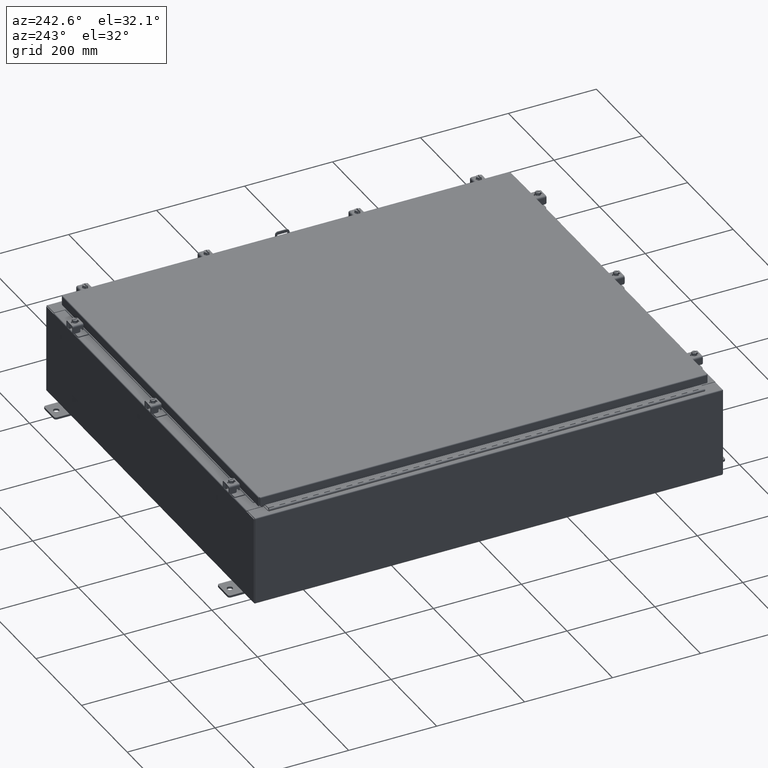
[diagram: clean part render]
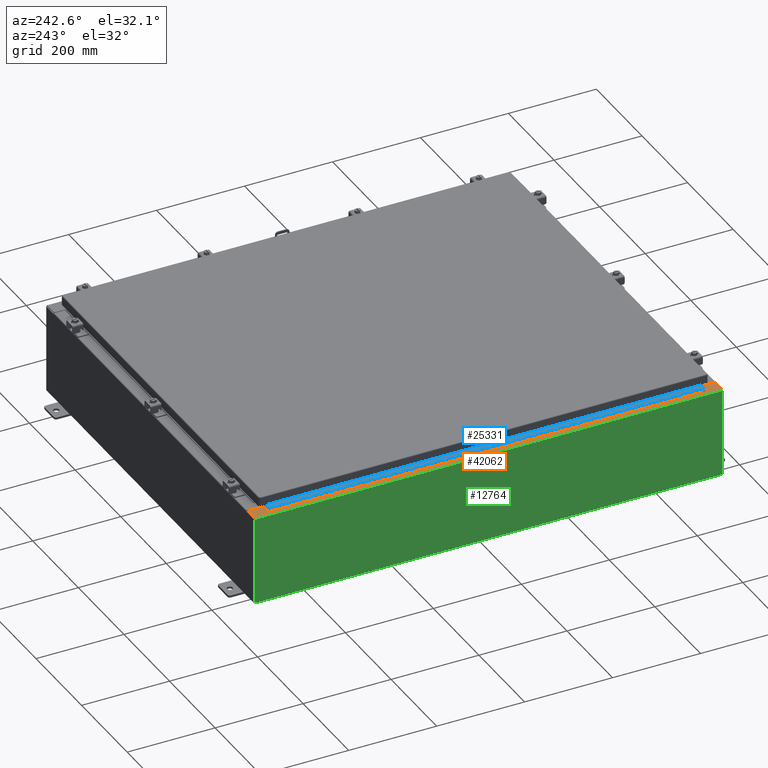
[diagram: same view with three faces highlighted in distinct colors, each labeled with its STEP entity id]
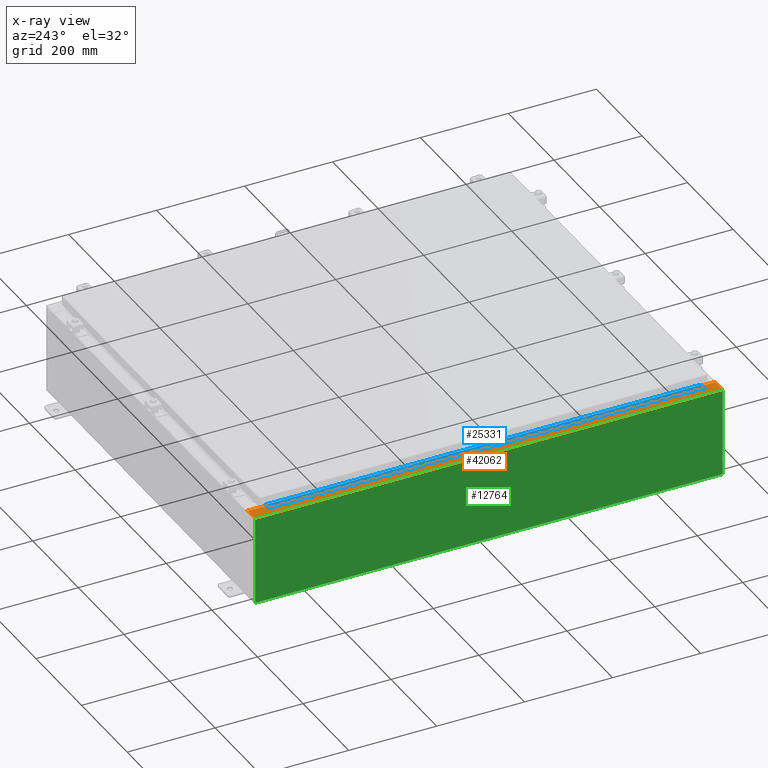
[diagram: x-ray of the same camera — body ghosted, the three highlighted faces saturated]
A machine part, auxiliary view with three faces highlighted in distinct colors.
The next image is the same camera in x-ray (body ghosted, the three faces saturated) — at least one of them is partly hidden behind the body in this view.
Their STEP definitions:

[orange] entity #42062 — the highlighted planar face has unit normal (0, 0, -1).
#292 = VECTOR ( 'NONE', #46625, 39.37007874015748100 ) ;
#854 = CARTESIAN_POINT ( 'NONE',  ( -16.69970000000002800, 19.63109999999999300, 7.925300000000008900 ) ) ;
#1529 = CIRCLE ( 'NONE', #25037, 0.01867499999999949400 ) ;
#1712 = DIRECTION ( 'NONE',  ( 1.000000000000000000, 0.0000000000000000000, 0.0000000000000000000 ) ) ;
#1902 = CARTESIAN_POINT ( 'NONE',  ( -16.75005000000003000, -19.63109999999999300, 7.925300000000008900 ) ) ;
#3262 = DIRECTION ( 'NONE',  ( -1.000000000000000000, 0.0000000000000000000, 0.0000000000000000000 ) ) ;
#4295 = VERTEX_POINT ( 'NONE', #28883 ) ;
#4501 = VECTOR ( 'NONE', #36100, 39.37007874015748100 ) ;
#5163 = CARTESIAN_POINT ( 'NONE',  ( -16.75005000000003000, 19.63109999999999300, 7.925300000000008900 ) ) ;
#5166 = LINE ( 'NONE', #17022, #45787 ) ;
#6002 = DIRECTION ( 'NONE',  ( -0.0000000000000000000, 1.000000000000000000, -0.0000000000000000000 ) ) ;
#6878 = CARTESIAN_POINT ( 'NONE',  ( -16.75005000000003000, -19.63109999999999300, 7.925300000000008900 ) ) ;
#7468 = ORIENTED_EDGE ( 'NONE', *, *, #40062, .F. ) ;
#7562 = ORIENTED_EDGE ( 'NONE', *, *, #29247, .T. ) ;
#7774 = VECTOR ( 'NONE', #20520, 39.37007874015748100 ) ;
#7964 = ORIENTED_EDGE ( 'NONE', *, *, #16435, .F. ) ;
#8015 = CARTESIAN_POINT ( 'NONE',  ( -16.71270000000003000, 19.59374999999999600, 7.925300000000008900 ) ) ;
#8051 = EDGE_CURVE ( 'NONE', #27299, #48574, #10964, .T. ) ;
#8837 = CARTESIAN_POINT ( 'NONE',  ( -17.91230000000002300, -20.92529999999999300, 7.925300000000000000 ) ) ;
#10010 = CARTESIAN_POINT ( 'NONE',  ( -16.71270000000003000, -19.59374999999999300, 7.925300000000008900 ) ) ;
#10557 = ORIENTED_EDGE ( 'NONE', *, *, #8051, .F. ) ;
#10964 = LINE ( 'NONE', #6878, #31239 ) ;
#11564 = VERTEX_POINT ( 'NONE', #38970 ) ;
#13285 = CARTESIAN_POINT ( 'NONE',  ( -16.71270000000003000, 19.59374999999999600, 7.925300000000008900 ) ) ;
#13401 = VERTEX_POINT ( 'NONE', #8837 ) ;
#13866 = DIRECTION ( 'NONE',  ( 0.0000000000000000000, 1.000000000000000000, 0.0000000000000000000 ) ) ;
#13925 = ORIENTED_EDGE ( 'NONE', *, *, #40228, .F. ) ;
#16435 = EDGE_CURVE ( 'NONE', #45128, #30812, #36956, .T. ) ;
#16683 = CARTESIAN_POINT ( 'NONE',  ( -5.679009539018325600E-014, 20.92529999999999600, 7.925300000000127900 ) ) ;
#17022 = CARTESIAN_POINT ( 'NONE',  ( -16.69970000000002800, 0.0000000000000000000, 7.925300000000008900 ) ) ;
#17021 = CARTESIAN_POINT ( 'NONE',  ( -1.314176917633203400E-013, -20.92530000000006000, 7.925300000000127900 ) ) ;
#17292 = ORIENTED_EDGE ( 'NONE', *, *, #48460, .T. ) ;
#17644 = CARTESIAN_POINT ( 'NONE',  ( -16.75005000000003000, 19.61242499999999500, 7.925300000000008900 ) ) ;
#17691 = LINE ( 'NONE', #47894, #38065 ) ;
#18432 = ORIENTED_EDGE ( 'NONE', *, *, #30672, .T. ) ;
#18976 = DIRECTION ( 'NONE',  ( 7.132762385546384700E-015, 0.0000000000000000000, -1.000000000000000000 ) ) ;
#19470 = DIRECTION ( 'NONE',  ( -0.0000000000000000000, -1.000000000000000000, -0.0000000000000000000 ) ) ;
#20520 = DIRECTION ( 'NONE',  ( -1.000000000000000000, 0.0000000000000000000, -7.132762385546384700E-015 ) ) ;
#20665 = VECTOR ( 'NONE', #33682, 39.37007874015748100 ) ;
#21004 = AXIS2_PLACEMENT_3D ( 'NONE', #17644, #44437, #21491 ) ;
#21491 = DIRECTION ( 'NONE',  ( 1.000000000000000000, 0.0000000000000000000, 0.0000000000000000000 ) ) ;
#21542 = EDGE_CURVE ( 'NONE', #33039, #37935, #35229, .T. ) ;
#23394 = VECTOR ( 'NONE', #13866, 39.37007874015748100 ) ;
#24086 = FACE_OUTER_BOUND ( 'NONE', #28556, .T. ) ;
#24486 = VERTEX_POINT ( 'NONE', #36296 ) ;
#24584 = DIRECTION ( 'NONE',  ( -7.132762385546384700E-015, -0.0000000000000000000, 1.000000000000000000 ) ) ;
#25037 = AXIS2_PLACEMENT_3D ( 'NONE', #47479, #24584, #1712 ) ;
#27299 = VERTEX_POINT ( 'NONE', #1902 ) ;
#28556 = EDGE_LOOP ( 'NONE', ( #43886, #7562, #18432, #7468, #17292, #39051, #10557, #45746, #29358, #7964, #13925, #29953 ) ) ;
#28883 = CARTESIAN_POINT ( 'NONE',  ( -16.69970000000002800, 19.63109999999999300, 7.925300000000008900 ) ) ;
#29247 = EDGE_CURVE ( 'NONE', #4295, #33904, #5166, .T. ) ;
#29358 = ORIENTED_EDGE ( 'NONE', *, *, #44867, .F. ) ;
#29953 = ORIENTED_EDGE ( 'NONE', *, *, #21542, .F. ) ;
#30672 = EDGE_CURVE ( 'NONE', #33904, #11564, #39413, .T. ) ;
#30812 = VERTEX_POINT ( 'NONE', #10010 ) ;
#31239 = VECTOR ( 'NONE', #37385, 39.37007874015748100 ) ;
#31677 = LINE ( 'NONE', #33797, #47227 ) ;
#33039 = VERTEX_POINT ( 'NONE', #5163 ) ;
#33682 = DIRECTION ( 'NONE',  ( 1.000000000000000000, 0.0000000000000000000, 0.0000000000000000000 ) ) ;
#33762 = CARTESIAN_POINT ( 'NONE',  ( -16.69970000000002800, 20.92529999999999600, 7.925300000000008900 ) ) ;
#33797 = CARTESIAN_POINT ( 'NONE',  ( -16.71270000000003000, -19.59374999999999300, 7.925300000000008900 ) ) ;
#33904 = VERTEX_POINT ( 'NONE', #33762 ) ;
#34466 = LINE ( 'NONE', #37539, #20665 ) ;
#34556 = VECTOR ( 'NONE', #19470, 39.37007874015748100 ) ;
#34964 = LINE ( 'NONE', #17021, #4501 ) ;
#35229 = CIRCLE ( 'NONE', #21004, 0.01867499999999949400 ) ;
#36100 = DIRECTION ( 'NONE',  ( 1.000000000000000000, -3.566381192773192400E-015, 7.132762385546384700E-015 ) ) ;
#36296 = CARTESIAN_POINT ( 'NONE',  ( -16.69970000000002800, -20.92529999999999300, 7.925300000000008900 ) ) ;
#36744 = CARTESIAN_POINT ( 'NONE',  ( -16.69970000000002800, 0.0000000000000000000, 7.925300000000008900 ) ) ;
#36908 = CARTESIAN_POINT ( 'NONE',  ( -16.69970000000002800, -19.63109999999999300, 7.925300000000008900 ) ) ;
#36956 = LINE ( 'NONE', #8015, #34556 ) ;
#37385 = DIRECTION ( 'NONE',  ( 1.000000000000000000, 0.0000000000000000000, 0.0000000000000000000 ) ) ;
#37539 = CARTESIAN_POINT ( 'NONE',  ( -16.75005000000003000, 19.59374999999999600, 7.925300000000008900 ) ) ;
#37896 = CARTESIAN_POINT ( 'NONE',  ( -5.679009539018325600E-014, 0.0000000000000000000, 7.925300000000127900 ) ) ;
#37935 = VERTEX_POINT ( 'NONE', #42819 ) ;
#38065 = VECTOR ( 'NONE', #6002, 39.37007874015748100 ) ;
#38970 = CARTESIAN_POINT ( 'NONE',  ( -17.91230000000002300, 20.92529999999999600, 7.925300000000000000 ) ) ;
#39051 = ORIENTED_EDGE ( 'NONE', *, *, #44060, .T. ) ;
#39413 = LINE ( 'NONE', #16683, #7774 ) ;
#40062 = EDGE_CURVE ( 'NONE', #13401, #11564, #17691, .T. ) ;
#40069 = CARTESIAN_POINT ( 'NONE',  ( -16.75005000000003000, -19.59374999999999300, 7.925300000000008900 ) ) ;
#40125 = LINE ( 'NONE', #36744, #23394 ) ;
#40228 = EDGE_CURVE ( 'NONE', #37935, #45128, #34466, .T. ) ;
#40904 = AXIS2_PLACEMENT_3D ( 'NONE', #37896, #18976, #45728 ) ;
#40950 = LINE ( 'NONE', #854, #292 ) ;
#41901 = PLANE ( 'NONE',  #40904 ) ;
#42062 = ADVANCED_FACE ( 'NONE', ( #24086 ), #41901, .F. ) ;
#42819 = CARTESIAN_POINT ( 'NONE',  ( -16.75005000000003000, 19.59374999999999600, 7.925300000000008900 ) ) ;
#43768 = DIRECTION ( 'NONE',  ( 0.0000000000000000000, 1.000000000000000000, 0.0000000000000000000 ) ) ;
#43886 = ORIENTED_EDGE ( 'NONE', *, *, #48332, .F. ) ;
#44060 = EDGE_CURVE ( 'NONE', #24486, #48574, #40125, .T. ) ;
#44437 = DIRECTION ( 'NONE',  ( -7.132762385546384700E-015, -0.0000000000000000000, 1.000000000000000000 ) ) ;
#44867 = EDGE_CURVE ( 'NONE', #30812, #46660, #31677, .T. ) ;
#45128 = VERTEX_POINT ( 'NONE', #13285 ) ;
#45728 = DIRECTION ( 'NONE',  ( -1.000000000000000000, 0.0000000000000000000, -7.132762385546384700E-015 ) ) ;
#45746 = ORIENTED_EDGE ( 'NONE', *, *, #47805, .F. ) ;
#45787 = VECTOR ( 'NONE', #43768, 39.37007874015748100 ) ;
#46625 = DIRECTION ( 'NONE',  ( -1.000000000000000000, 0.0000000000000000000, 0.0000000000000000000 ) ) ;
#46660 = VERTEX_POINT ( 'NONE', #40069 ) ;
#47227 = VECTOR ( 'NONE', #3262, 39.37007874015748100 ) ;
#47479 = CARTESIAN_POINT ( 'NONE',  ( -16.75005000000003000, -19.61242499999999100, 7.925300000000008900 ) ) ;
#47805 = EDGE_CURVE ( 'NONE', #46660, #27299, #1529, .T. ) ;
#47894 = CARTESIAN_POINT ( 'NONE',  ( -17.91230000000002300, 20.92529999999999600, 7.925300000000000000 ) ) ;
#48332 = EDGE_CURVE ( 'NONE', #4295, #33039, #40950, .T. ) ;
#48460 = EDGE_CURVE ( 'NONE', #13401, #24486, #34964, .T. ) ;
#48574 = VERTEX_POINT ( 'NONE', #36908 ) ;

[blue] entity #25331 — the highlighted planar face has unit normal (-0, -0, 1).
#45 = VERTEX_POINT ( 'NONE', #6529 ) ;
#62 = VERTEX_POINT ( 'NONE', #35681 ) ;
#234 = CARTESIAN_POINT ( 'NONE',  ( -0.6869999999999982800, 0.5504999999999997700, -36.50000000000000000 ) ) ;
#333 = EDGE_CURVE ( 'NONE', #9125, #28024, #13910, .T. ) ;
#343 = EDGE_CURVE ( 'NONE', #26439, #11804, #32997, .T. ) ;
#386 = VERTEX_POINT ( 'NONE', #44117 ) ;
#397 = VECTOR ( 'NONE', #37515, 39.37007874015748100 ) ;
#406 = LINE ( 'NONE', #21340, #39858 ) ;
#461 = VECTOR ( 'NONE', #31464, 39.37007874015748100 ) ;
#497 = EDGE_CURVE ( 'NONE', #22870, #35286, #18061, .T. ) ;
#607 = VERTEX_POINT ( 'NONE', #5066 ) ;
#619 = ORIENTED_EDGE ( 'NONE', *, *, #33652, .F. ) ;
#642 = VERTEX_POINT ( 'NONE', #9083 ) ;
#666 = LINE ( 'NONE', #4059, #40110 ) ;
#680 = DIRECTION ( 'NONE',  ( -3.389037039080723100E-015, -1.000000000000000000, 0.0000000000000000000 ) ) ;
#702 = ORIENTED_EDGE ( 'NONE', *, *, #8441, .F. ) ;
#802 = EDGE_CURVE ( 'NONE', #22246, #34842, #3718, .T. ) ;
#822 = ORIENTED_EDGE ( 'NONE', *, *, #32620, .T. ) ;
#850 = VERTEX_POINT ( 'NONE', #3625 ) ;
#910 = CARTESIAN_POINT ( 'NONE',  ( -0.6869999999999978300, 0.6754999999999996600, -12.99999999999999800 ) ) ;
#933 = LINE ( 'NONE', #33777, #30179 ) ;
#977 = CARTESIAN_POINT ( 'NONE',  ( -0.6869999999999978300, 0.6754999999999996600, -39.00000000000000000 ) ) ;
#1069 = VERTEX_POINT ( 'NONE', #2337 ) ;
#1159 = DIRECTION ( 'NONE',  ( -3.389037039080723100E-015, -1.000000000000000000, 0.0000000000000000000 ) ) ;
#1176 = ORIENTED_EDGE ( 'NONE', *, *, #40016, .T. ) ;
#1183 = VERTEX_POINT ( 'NONE', #1611 ) ;
#1184 = VECTOR ( 'NONE', #29108, 39.37007874015748100 ) ;
#1268 = VERTEX_POINT ( 'NONE', #30391 ) ;
#1304 = CARTESIAN_POINT ( 'NONE',  ( -0.6869999999999973900, 0.8004999999999995500, -4.000000000000000000 ) ) ;
#1394 = DIRECTION ( 'NONE',  ( -3.389037039080723100E-015, -1.000000000000000000, 0.0000000000000000000 ) ) ;
#1459 = CARTESIAN_POINT ( 'NONE',  ( -0.6869999999999973900, 0.8004999999999995500, -5.000000000000000000 ) ) ;
#1578 = VECTOR ( 'NONE', #2621, 39.37007874015748100 ) ;
#1582 = DIRECTION ( 'NONE',  ( -3.389037039080723100E-015, -1.000000000000000000, 0.0000000000000000000 ) ) ;
#1597 = ORIENTED_EDGE ( 'NONE', *, *, #19589, .F. ) ;
#1611 = CARTESIAN_POINT ( 'NONE',  ( -0.6869999999999982800, 0.5504999999999997700, -17.00000000000000000 ) ) ;
#1664 = EDGE_CURVE ( 'NONE', #45, #25530, #10813, .T. ) ;
#1675 = DIRECTION ( 'NONE',  ( -3.389037039080723100E-015, -1.000000000000000000, 0.0000000000000000000 ) ) ;
#1713 = CARTESIAN_POINT ( 'NONE',  ( -0.6869999999999978300, 0.6754999999999996600, -39.00000000000000000 ) ) ;
#1724 = VECTOR ( 'NONE', #6112, 39.37007874015748100 ) ;
#1757 = VERTEX_POINT ( 'NONE', #48277 ) ;
#1785 = CARTESIAN_POINT ( 'NONE',  ( -0.6869999999999978300, 0.6754999999999996600, -39.00000000000000000 ) ) ;
#1851 = VERTEX_POINT ( 'NONE', #5909 ) ;
#1919 = DIRECTION ( 'NONE',  ( 3.389037039080723100E-015, 1.000000000000000000, -0.0000000000000000000 ) ) ;
#1937 = CARTESIAN_POINT ( 'NONE',  ( -0.6869999999999982800, 0.5504999999999997700, -15.50000000000000000 ) ) ;
#2051 = CARTESIAN_POINT ( 'NONE',  ( -0.6869999999999978300, 0.6754999999999996600, -32.00000000000000000 ) ) ;
#2069 = CARTESIAN_POINT ( 'NONE',  ( -0.6869999999999982800, 0.5504999999999997700, -10.50000000000000000 ) ) ;
#2215 = CARTESIAN_POINT ( 'NONE',  ( -0.6869999999999973900, 0.8004999999999995500, -30.50000000000000400 ) ) ;
#2241 = VERTEX_POINT ( 'NONE', #21206 ) ;
#2273 = LINE ( 'NONE', #35828, #11270 ) ;
#2291 = VERTEX_POINT ( 'NONE', #24087 ) ;
#2337 = CARTESIAN_POINT ( 'NONE',  ( -0.6869999999999982800, 0.5504999999999997700, -1.499999999999999800 ) ) ;
#2354 = ORIENTED_EDGE ( 'NONE', *, *, #40599, .F. ) ;
#2376 = LINE ( 'NONE', #16665, #20275 ) ;
#2404 = EDGE_CURVE ( 'NONE', #49053, #3343, #49534, .T. ) ;
#2410 = CARTESIAN_POINT ( 'NONE',  ( -0.6869999999999982800, 0.5504999999999997700, -34.50000000000000000 ) ) ;
#2427 = VERTEX_POINT ( 'NONE', #7983 ) ;
#2451 = CARTESIAN_POINT ( 'NONE',  ( -0.6869999999999973900, 0.8004999999999995500, -9.500000000000000000 ) ) ;
#2485 = EDGE_CURVE ( 'NONE', #32839, #18664, #16667, .T. ) ;
#2553 = VERTEX_POINT ( 'NONE', #12175 ) ;
#2621 = DIRECTION ( 'NONE',  ( 0.0000000000000000000, -0.0000000000000000000, -1.000000000000000000 ) ) ;
#2624 = CARTESIAN_POINT ( 'NONE',  ( -0.6869999999999978300, 0.6754999999999996600, -10.00000000000000000 ) ) ;
#2639 = EDGE_CURVE ( 'NONE', #38472, #62, #19443, .T. ) ;
#2650 = LINE ( 'NONE', #12046, #11632 ) ;
#2722 = LINE ( 'NONE', #36313, #42193 ) ;
#2744 = VERTEX_POINT ( 'NONE', #30899 ) ;
#2765 = VERTEX_POINT ( 'NONE', #12902 ) ;
#2779 = LINE ( 'NONE', #48350, #1578 ) ;
#2798 = CARTESIAN_POINT ( 'NONE',  ( -0.6869999999999982800, 0.5504999999999997700, -16.50000000000000000 ) ) ;
#2842 = VERTEX_POINT ( 'NONE', #32226 ) ;
#2909 = VECTOR ( 'NONE', #34198, 39.37007874015748100 ) ;
#2934 = LINE ( 'NONE', #17415, #30990 ) ;
#2948 = VERTEX_POINT ( 'NONE', #48080 ) ;
#2976 = VECTOR ( 'NONE', #18723, 39.37007874015748100 ) ;
#2995 = LINE ( 'NONE', #30866, #32246 ) ;
#3061 = DIRECTION ( 'NONE',  ( 0.0000000000000000000, -0.0000000000000000000, -1.000000000000000000 ) ) ;
#3099 = CARTESIAN_POINT ( 'NONE',  ( -0.6869999999999978300, 0.6754999999999996600, -8.500000000000000000 ) ) ;
#3153 = EDGE_CURVE ( 'NONE', #30420, #28685, #47477, .T. ) ;
#3196 = CARTESIAN_POINT ( 'NONE',  ( -0.6869999999999982800, 0.5504999999999997700, -15.50000000000000000 ) ) ;
#3292 = ORIENTED_EDGE ( 'NONE', *, *, #42782, .F. ) ;
#3307 = VERTEX_POINT ( 'NONE', #38192 ) ;
#3319 = CARTESIAN_POINT ( 'NONE',  ( -0.6869999999999973900, 0.8004999999999995500, -22.00000000000000000 ) ) ;
#3328 = CARTESIAN_POINT ( 'NONE',  ( -0.6869999999999973900, 0.8004999999999995500, -23.99999999999999600 ) ) ;
#3343 = VERTEX_POINT ( 'NONE', #12730 ) ;
#3353 = VERTEX_POINT ( 'NONE', #12065 ) ;
#3405 = CARTESIAN_POINT ( 'NONE',  ( -0.6869999999999982800, 0.5504999999999997700, -13.50000000000000000 ) ) ;
#3462 = VECTOR ( 'NONE', #46561, 39.37007874015748100 ) ;
#3578 = CARTESIAN_POINT ( 'NONE',  ( -0.6869999999999982800, 0.5504999999999997700, -7.499999999999999100 ) ) ;
#3625 = CARTESIAN_POINT ( 'NONE',  ( -0.6869999999999982800, 0.5504999999999997700, -27.50000000000000000 ) ) ;
#3656 = ORIENTED_EDGE ( 'NONE', *, *, #49119, .F. ) ;
#3718 = LINE ( 'NONE', #18748, #12683 ) ;
#3728 = CARTESIAN_POINT ( 'NONE',  ( -0.6869999999999982800, 0.5504999999999997700, -6.499999999999999100 ) ) ;
#3794 = VERTEX_POINT ( 'NONE', #33846 ) ;
#3838 = LINE ( 'NONE', #13634, #22917 ) ;
#3919 = LINE ( 'NONE', #46348, #14052 ) ;
#3924 = CARTESIAN_POINT ( 'NONE',  ( -0.6869999999999973900, 0.8004999999999995500, -33.00000000000000000 ) ) ;
#3932 = VERTEX_POINT ( 'NONE', #29581 ) ;
#3944 = CARTESIAN_POINT ( 'NONE',  ( -0.6869999999999982800, 0.5504999999999997700, -3.500000000000000000 ) ) ;
#4020 = ORIENTED_EDGE ( 'NONE', *, *, #22551, .F. ) ;
#4043 = CARTESIAN_POINT ( 'NONE',  ( -0.6869999999999978300, 0.6754999999999996600, -11.50000000000000000 ) ) ;
#4059 = CARTESIAN_POINT ( 'NONE',  ( -0.6869999999999973900, 0.8004999999999995500, -27.50000000000000000 ) ) ;
#4117 = VECTOR ( 'NONE', #23976, 39.37007874015748100 ) ;
#4221 = VECTOR ( 'NONE', #42916, 39.37007874015748100 ) ;
#4243 = DIRECTION ( 'NONE',  ( -3.389037039080723100E-015, -1.000000000000000000, 0.0000000000000000000 ) ) ;
#4351 = CARTESIAN_POINT ( 'NONE',  ( -0.6869999999999978300, 0.6754999999999996600, -39.00000000000000000 ) ) ;
#4367 = CARTESIAN_POINT ( 'NONE',  ( -0.6869999999999973900, 0.8004999999999995500, -28.00000000000000000 ) ) ;
#4378 = VECTOR ( 'NONE', #40789, 39.37007874015748100 ) ;
#4384 = ORIENTED_EDGE ( 'NONE', *, *, #333, .F. ) ;
#4451 = LINE ( 'NONE', #38462, #41471 ) ;
#4456 = VECTOR ( 'NONE', #34220, 39.37007874015748100 ) ;
#4457 = CARTESIAN_POINT ( 'NONE',  ( -0.6869999999999982800, 0.5504999999999997700, -11.50000000000000000 ) ) ;
#4478 = DIRECTION ( 'NONE',  ( -3.389037039080723100E-015, -1.000000000000000000, 0.0000000000000000000 ) ) ;
#4497 = EDGE_CURVE ( 'NONE', #14185, #33506, #4451, .T. ) ;
#4510 = VERTEX_POINT ( 'NONE', #21190 ) ;
#4575 = VECTOR ( 'NONE', #36196, 39.37007874015748100 ) ;
#4645 = FACE_OUTER_BOUND ( 'NONE', #23189, .T. ) ;
#4665 = LINE ( 'NONE', #20601, #33910 ) ;
#4772 = DIRECTION ( 'NONE',  ( 3.389037039080723100E-015, 1.000000000000000000, -0.0000000000000000000 ) ) ;
#4794 = CARTESIAN_POINT ( 'NONE',  ( -0.6869999999999978300, 0.6754999999999996600, -5.000000000000000000 ) ) ;
#4803 = CARTESIAN_POINT ( 'NONE',  ( -0.6869999999999982800, 0.5504999999999997700, -29.50000000000000000 ) ) ;
#4821 = CARTESIAN_POINT ( 'NONE',  ( -0.6869999999999982800, 0.5504999999999997700, -11.00000000000000000 ) ) ;
#4843 = LINE ( 'NONE', #33238, #13783 ) ;
#4850 = EDGE_CURVE ( 'NONE', #42303, #20239, #46232, .T. ) ;
#4896 = VECTOR ( 'NONE', #7220, 39.37007874015748100 ) ;
#4955 = ORIENTED_EDGE ( 'NONE', *, *, #37542, .F. ) ;
#5009 = CARTESIAN_POINT ( 'NONE',  ( -0.6870000000000022800, -0.6245000000000003900, 0.0000000000000000000 ) ) ;
#5066 = CARTESIAN_POINT ( 'NONE',  ( -0.6869999999999982800, 0.5504999999999997700, -33.00000000000000000 ) ) ;
#5123 = VECTOR ( 'NONE', #32276, 39.37007874015748100 ) ;
#5154 = CARTESIAN_POINT ( 'NONE',  ( -0.6869999999999982800, 0.5504999999999997700, -26.00000000000000000 ) ) ;
#5239 = LINE ( 'NONE', #15434, #44672 ) ;
#5245 = LINE ( 'NONE', #48723, #43455 ) ;
#5265 = DIRECTION ( 'NONE',  ( -3.389037039080723100E-015, -1.000000000000000000, 0.0000000000000000000 ) ) ;
#5276 = DIRECTION ( 'NONE',  ( 0.0000000000000000000, -0.0000000000000000000, -1.000000000000000000 ) ) ;
#5285 = VECTOR ( 'NONE', #21586, 39.37007874015748100 ) ;
#5295 = VERTEX_POINT ( 'NONE', #19649 ) ;
#5320 = DIRECTION ( 'NONE',  ( 3.389037039080723100E-015, 1.000000000000000000, -0.0000000000000000000 ) ) ;
#5329 = CARTESIAN_POINT ( 'NONE',  ( -0.6869999999999973900, 0.8004999999999995500, -31.00000000000000000 ) ) ;
#5420 = LINE ( 'NONE', #31296, #14356 ) ;
#5508 = LINE ( 'NONE', #28365, #34794 ) ;
#5509 = VERTEX_POINT ( 'NONE', #24481 ) ;
#5510 = EDGE_CURVE ( 'NONE', #37752, #39726, #38995, .T. ) ;
#5522 = EDGE_CURVE ( 'NONE', #13920, #3307, #37806, .T. ) ;
#5537 = DIRECTION ( 'NONE',  ( 3.389037039080723100E-015, 1.000000000000000000, -0.0000000000000000000 ) ) ;
#5631 = VERTEX_POINT ( 'NONE', #5154 ) ;
#5677 = CARTESIAN_POINT ( 'NONE',  ( -0.6869999999999978300, 0.6754999999999996600, -39.00000000000000000 ) ) ;
#5747 = CARTESIAN_POINT ( 'NONE',  ( -0.6869999999999982800, 0.5504999999999997700, -2.999999999999999600 ) ) ;
#5761 = EDGE_CURVE ( 'NONE', #2427, #3794, #48500, .T. ) ;
#5792 = CARTESIAN_POINT ( 'NONE',  ( -0.6869999999999973900, 0.8004999999999995500, -38.50000000000000000 ) ) ;
#5844 = ORIENTED_EDGE ( 'NONE', *, *, #22206, .T. ) ;
#5896 = VECTOR ( 'NONE', #12452, 39.37007874015748100 ) ;
#5909 = CARTESIAN_POINT ( 'NONE',  ( -0.6869999999999982800, 0.5504999999999997700, -20.00000000000000000 ) ) ;
#6036 = VERTEX_POINT ( 'NONE', #13635 ) ;
#6093 = EDGE_CURVE ( 'NONE', #4510, #17028, #36231, .T. ) ;
#6112 = DIRECTION ( 'NONE',  ( -3.389037039080723100E-015, -1.000000000000000000, 0.0000000000000000000 ) ) ;
#6143 = EDGE_CURVE ( 'NONE', #34218, #22704, #13513, .T. ) ;
#6150 = ORIENTED_EDGE ( 'NONE', *, *, #14597, .T. ) ;
#6187 = LINE ( 'NONE', #18666, #15110 ) ;
#6212 = CARTESIAN_POINT ( 'NONE',  ( -0.6869999999999978300, 0.6754999999999996600, -39.00000000000000000 ) ) ;
#6219 = DIRECTION ( 'NONE',  ( -3.389037039080723100E-015, -1.000000000000000000, 0.0000000000000000000 ) ) ;
#6227 = VECTOR ( 'NONE', #48708, 39.37007874015748100 ) ;
#6292 = DIRECTION ( 'NONE',  ( 3.389037039080723100E-015, 1.000000000000000000, -0.0000000000000000000 ) ) ;
#6323 = CARTESIAN_POINT ( 'NONE',  ( -0.6869999999999978300, 0.6754999999999996600, -39.00000000000000000 ) ) ;
#6376 = CARTESIAN_POINT ( 'NONE',  ( -0.6869999999999978300, 0.6754999999999996600, -6.000000000000000900 ) ) ;
#6462 = EDGE_CURVE ( 'NONE', #2842, #2291, #28393, .T. ) ;
#6466 = EDGE_CURVE ( 'NONE', #32902, #22180, #9324, .T. ) ;
#6487 = CARTESIAN_POINT ( 'NONE',  ( -0.6869999999999978300, 0.6754999999999996600, -24.50000000000000000 ) ) ;
#6517 = EDGE_CURVE ( 'NONE', #33506, #5295, #37393, .T. ) ;
#6527 = CARTESIAN_POINT ( 'NONE',  ( -0.6869999999999982800, 0.5504999999999997700, -38.50000000000000000 ) ) ;
#6529 = CARTESIAN_POINT ( 'NONE',  ( -0.6869999999999982800, 0.5504999999999997700, -23.00000000000000000 ) ) ;
#6544 = LINE ( 'NONE', #37890, #25599 ) ;
#6619 = VECTOR ( 'NONE', #23540, 39.37007874015748100 ) ;
#6636 = CARTESIAN_POINT ( 'NONE',  ( -0.6869999999999978300, 0.6754999999999996600, -39.00000000000000000 ) ) ;
#6700 = ORIENTED_EDGE ( 'NONE', *, *, #33221, .T. ) ;
#6766 = CARTESIAN_POINT ( 'NONE',  ( -0.6869999999999973900, 0.8004999999999995500, -20.50000000000000400 ) ) ;
#6785 = EDGE_CURVE ( 'NONE', #2291, #45612, #8700, .T. ) ;
#6830 = VECTOR ( 'NONE', #6990, 39.37007874015748100 ) ;
#6849 = EDGE_CURVE ( 'NONE', #19164, #35665, #3919, .T. ) ;
#6990 = DIRECTION ( 'NONE',  ( -3.389037039080723100E-015, -1.000000000000000000, 0.0000000000000000000 ) ) ;
#7003 = LINE ( 'NONE', #14755, #26037 ) ;
#7014 = CARTESIAN_POINT ( 'NONE',  ( -0.6869999999999982800, 0.5504999999999997700, -28.00000000000000000 ) ) ;
#7029 = DIRECTION ( 'NONE',  ( 0.0000000000000000000, 0.0000000000000000000, 1.000000000000000000 ) ) ;
#7032 = VERTEX_POINT ( 'NONE', #2798 ) ;
#7056 = ORIENTED_EDGE ( 'NONE', *, *, #22453, .F. ) ;
#7115 = LINE ( 'NONE', #36134, #17191 ) ;
#7117 = ORIENTED_EDGE ( 'NONE', *, *, #26362, .F. ) ;
#7123 = DIRECTION ( 'NONE',  ( 3.369016658928398200E-015, 1.000000000000000000, 0.0000000000000000000 ) ) ;
#7131 = ORIENTED_EDGE ( 'NONE', *, *, #43163, .F. ) ;
#7166 = DIRECTION ( 'NONE',  ( 0.0000000000000000000, -0.0000000000000000000, -1.000000000000000000 ) ) ;
#7182 = LINE ( 'NONE', #28339, #27430 ) ;
#7199 = ORIENTED_EDGE ( 'NONE', *, *, #8370, .F. ) ;
#7205 = CARTESIAN_POINT ( 'NONE',  ( -0.6869999999999973900, 0.8004999999999995500, -36.00000000000000000 ) ) ;
#7220 = DIRECTION ( 'NONE',  ( 3.389037039080723100E-015, 1.000000000000000000, -0.0000000000000000000 ) ) ;
#7332 = VERTEX_POINT ( 'NONE', #37946 ) ;
#7368 = VECTOR ( 'NONE', #38118, 39.37007874015748100 ) ;
#7483 = VERTEX_POINT ( 'NONE', #25112 ) ;
#7512 = EDGE_CURVE ( 'NONE', #16692, #16097, #24709, .T. ) ;
#7582 = VECTOR ( 'NONE', #16516, 39.37007874015748100 ) ;
#7642 = EDGE_CURVE ( 'NONE', #11851, #12793, #48012, .T. ) ;
#7646 = DIRECTION ( 'NONE',  ( 0.0000000000000000000, -0.0000000000000000000, -1.000000000000000000 ) ) ;
#7694 = CARTESIAN_POINT ( 'NONE',  ( -0.6869999999999982800, 0.5504999999999997700, -28.50000000000000000 ) ) ;
#7706 = VERTEX_POINT ( 'NONE', #234 ) ;
#7724 = LINE ( 'NONE', #6212, #38169 ) ;
#7746 = ORIENTED_EDGE ( 'NONE', *, *, #27332, .F. ) ;
#7766 = VERTEX_POINT ( 'NONE', #3405 ) ;
#7857 = EDGE_CURVE ( 'NONE', #28024, #22925, #38475, .T. ) ;
#7860 = CARTESIAN_POINT ( 'NONE',  ( -0.6869999999999982800, 0.5504999999999997700, -26.50000000000000400 ) ) ;
#7884 = LINE ( 'NONE', #4351, #38345 ) ;
#7901 = ORIENTED_EDGE ( 'NONE', *, *, #31274, .T. ) ;
#7983 = CARTESIAN_POINT ( 'NONE',  ( -0.6869999999999978300, 0.6754999999999996600, -26.50000000000000400 ) ) ;
#8137 = VECTOR ( 'NONE', #7646, 39.37007874015748100 ) ;
#8153 = EDGE_CURVE ( 'NONE', #44768, #43035, #6187, .T. ) ;
#8370 = EDGE_CURVE ( 'NONE', #1069, #24960, #38433, .T. ) ;
#8378 = VECTOR ( 'NONE', #23716, 39.37007874015748100 ) ;
#8422 = EDGE_CURVE ( 'NONE', #7766, #38472, #14492, .T. ) ;
#8441 = EDGE_CURVE ( 'NONE', #40739, #40315, #33597, .T. ) ;
#8465 = DIRECTION ( 'NONE',  ( 0.0000000000000000000, 0.0000000000000000000, 1.000000000000000000 ) ) ;
#8466 = ORIENTED_EDGE ( 'NONE', *, *, #33639, .F. ) ;
#8512 = EDGE_CURVE ( 'NONE', #46985, #386, #10921, .T. ) ;
#8551 = DIRECTION ( 'NONE',  ( 0.0000000000000000000, -0.0000000000000000000, -1.000000000000000000 ) ) ;
#8554 = DIRECTION ( 'NONE',  ( 0.0000000000000000000, 0.0000000000000000000, 1.000000000000000000 ) ) ;
#8636 = CARTESIAN_POINT ( 'NONE',  ( -0.6869999999999978300, 0.6754999999999996600, -39.00000000000000000 ) ) ;
#8654 = CARTESIAN_POINT ( 'NONE',  ( -0.6869999999999978300, 0.6754999999999996600, -39.00000000000000000 ) ) ;
#8700 = LINE ( 'NONE', #3328, #17614 ) ;
#8729 = DIRECTION ( 'NONE',  ( 0.0000000000000000000, 0.0000000000000000000, 1.000000000000000000 ) ) ;
#8750 = LINE ( 'NONE', #39435, #7582 ) ;
#8939 = CARTESIAN_POINT ( 'NONE',  ( -0.6869999999999982800, 0.5504999999999997700, -37.50000000000000000 ) ) ;
#8943 = VECTOR ( 'NONE', #40293, 39.37007874015748100 ) ;
#9007 = VECTOR ( 'NONE', #7123, 39.37007874015748100 ) ;
#9045 = ORIENTED_EDGE ( 'NONE', *, *, #497, .F. ) ;
#9071 = ORIENTED_EDGE ( 'NONE', *, *, #6849, .F. ) ;
#9083 = CARTESIAN_POINT ( 'NONE',  ( -0.6869999999999978300, 0.6754999999999996600, -6.499999999999999100 ) ) ;
#9096 = ORIENTED_EDGE ( 'NONE', *, *, #7642, .F. ) ;
#9124 = ORIENTED_EDGE ( 'NONE', *, *, #42153, .T. ) ;
#9125 = VERTEX_POINT ( 'NONE', #3196 ) ;
#9184 = LINE ( 'NONE', #25364, #18099 ) ;
#9188 = DIRECTION ( 'NONE',  ( 3.389037039080723100E-015, 1.000000000000000000, -0.0000000000000000000 ) ) ;
#9324 = LINE ( 'NONE', #39722, #27211 ) ;
#9383 = LINE ( 'NONE', #29903, #48787 ) ;
#9424 = EDGE_CURVE ( 'NONE', #22870, #2241, #2376, .T. ) ;
#9429 = ORIENTED_EDGE ( 'NONE', *, *, #14976, .F. ) ;
#9514 = DIRECTION ( 'NONE',  ( 0.0000000000000000000, 0.0000000000000000000, 1.000000000000000000 ) ) ;
#9517 = ORIENTED_EDGE ( 'NONE', *, *, #36443, .T. ) ;
#9560 = DIRECTION ( 'NONE',  ( 0.0000000000000000000, -0.0000000000000000000, -1.000000000000000000 ) ) ;
#9740 = EDGE_CURVE ( 'NONE', #35932, #29995, #38817, .T. ) ;
#9785 = EDGE_CURVE ( 'NONE', #11539, #2842, #7182, .T. ) ;
#9826 = CARTESIAN_POINT ( 'NONE',  ( -0.6869999999999982800, 0.5504999999999997700, -32.00000000000000000 ) ) ;
#9840 = CARTESIAN_POINT ( 'NONE',  ( -0.6869999999999973900, 0.8004999999999995500, -13.50000000000000000 ) ) ;
#9864 = CARTESIAN_POINT ( 'NONE',  ( -0.6869999999999982800, 0.5504999999999997700, -8.500000000000000000 ) ) ;
#9869 = ORIENTED_EDGE ( 'NONE', *, *, #35188, .F. ) ;
#9955 = LINE ( 'NONE', #47331, #48160 ) ;
#9988 = CARTESIAN_POINT ( 'NONE',  ( -0.6869999999999978300, 0.6754999999999996600, -33.00000000000000000 ) ) ;
#10038 = VERTEX_POINT ( 'NONE', #9988 ) ;
#10142 = ORIENTED_EDGE ( 'NONE', *, *, #35704, .F. ) ;
#10226 = ORIENTED_EDGE ( 'NONE', *, *, #7857, .F. ) ;
#10317 = CARTESIAN_POINT ( 'NONE',  ( -0.6869999999999978300, 0.6754999999999996600, -3.500000000000000000 ) ) ;
#10344 = EDGE_CURVE ( 'NONE', #34724, #28858, #16001, .T. ) ;
#10402 = CARTESIAN_POINT ( 'NONE',  ( -0.6869999999999982800, 0.5504999999999997700, -33.50000000000000000 ) ) ;
#10444 = DIRECTION ( 'NONE',  ( -3.389037039080723100E-015, -1.000000000000000000, 0.0000000000000000000 ) ) ;
#10477 = EDGE_CURVE ( 'NONE', #22788, #47912, #40518, .T. ) ;
#10487 = CARTESIAN_POINT ( 'NONE',  ( -0.6869999999999973900, 0.8004999999999995500, -17.99999999999999600 ) ) ;
#10501 = CARTESIAN_POINT ( 'NONE',  ( -0.6869999999999973900, 0.8004999999999995500, -2.000000000000000000 ) ) ;
#10585 = LINE ( 'NONE', #29308, #19511 ) ;
#10631 = CARTESIAN_POINT ( 'NONE',  ( -0.6869999999999978300, 0.6754999999999996600, -20.00000000000000000 ) ) ;
#10649 = VECTOR ( 'NONE', #44777, 39.37007874015748100 ) ;
#10655 = ORIENTED_EDGE ( 'NONE', *, *, #4850, .F. ) ;
#10705 = VECTOR ( 'NONE', #45137, 39.37007874015748100 ) ;
#10709 = VECTOR ( 'NONE', #23041, 39.37007874015748100 ) ;
#10713 = CARTESIAN_POINT ( 'NONE',  ( -0.6869999999999978300, 0.6754999999999996600, -10.50000000000000000 ) ) ;
#10725 = VECTOR ( 'NONE', #13766, 39.37007874015748100 ) ;
#10776 = LINE ( 'NONE', #13886, #18499 ) ;
#10777 = EDGE_CURVE ( 'NONE', #12632, #36244, #6544, .T. ) ;
#10813 = LINE ( 'NONE', #31338, #18538 ) ;
#10836 = ORIENTED_EDGE ( 'NONE', *, *, #37919, .F. ) ;
#10842 = EDGE_CURVE ( 'NONE', #25159, #32839, #33369, .T. ) ;
#10893 = ORIENTED_EDGE ( 'NONE', *, *, #42924, .F. ) ;
#10921 = LINE ( 'NONE', #32899, #21021 ) ;
#10943 = DIRECTION ( 'NONE',  ( 0.0000000000000000000, -0.0000000000000000000, -1.000000000000000000 ) ) ;
#10986 = EDGE_CURVE ( 'NONE', #33380, #22925, #46522, .T. ) ;
#11065 = EDGE_CURVE ( 'NONE', #14948, #18678, #2273, .T. ) ;
#11089 = CARTESIAN_POINT ( 'NONE',  ( -0.6869999999999982800, 0.5504999999999997700, -0.5000000000000000000 ) ) ;
#11133 = EDGE_CURVE ( 'NONE', #27569, #24357, #17791, .T. ) ;
#11151 = CARTESIAN_POINT ( 'NONE',  ( -0.6869999999999978300, 0.6754999999999996600, -1.000000000000000000 ) ) ;
#11203 = EDGE_CURVE ( 'NONE', #31743, #35751, #35742, .T. ) ;
#11270 = VECTOR ( 'NONE', #5276, 39.37007874015748100 ) ;
#11273 = ORIENTED_EDGE ( 'NONE', *, *, #33496, .T. ) ;
#11378 = ORIENTED_EDGE ( 'NONE', *, *, #23664, .F. ) ;
#11383 = LINE ( 'NONE', #2451, #1184 ) ;
#11420 = CARTESIAN_POINT ( 'NONE',  ( -0.6869999999999973900, 0.8004999999999995500, -21.50000000000000400 ) ) ;
#11539 = VERTEX_POINT ( 'NONE', #42643 ) ;
#11576 = CARTESIAN_POINT ( 'NONE',  ( -0.6869999999999978300, 0.6754999999999996600, -2.000000000000000000 ) ) ;
#11581 = VERTEX_POINT ( 'NONE', #42950 ) ;
#11632 = VECTOR ( 'NONE', #27366, 39.37007874015748100 ) ;
#11648 = CARTESIAN_POINT ( 'NONE',  ( -0.6869999999999978300, 0.6754999999999996600, -39.00000000000000000 ) ) ;
#11693 = DIRECTION ( 'NONE',  ( 0.0000000000000000000, 0.0000000000000000000, 1.000000000000000000 ) ) ;
#11723 = LINE ( 'NONE', #18462, #31988 ) ;
#11777 = EDGE_CURVE ( 'NONE', #40529, #25159, #406, .T. ) ;
#11792 = DIRECTION ( 'NONE',  ( 0.0000000000000000000, 0.0000000000000000000, 1.000000000000000000 ) ) ;
#11804 = VERTEX_POINT ( 'NONE', #6376 ) ;
#11833 = CARTESIAN_POINT ( 'NONE',  ( -0.6869999999999978300, 0.6754999999999996600, -39.00000000000000000 ) ) ;
#11849 = LINE ( 'NONE', #48587, #10649 ) ;
#11851 = VERTEX_POINT ( 'NONE', #25521 ) ;
#11872 = CARTESIAN_POINT ( 'NONE',  ( -0.6869999999999973900, 0.8004999999999995500, -32.00000000000000000 ) ) ;
#11905 = CARTESIAN_POINT ( 'NONE',  ( -0.6869999999999978300, 0.6754999999999996600, -4.000000000000000000 ) ) ;
#11908 = VERTEX_POINT ( 'NONE', #10713 ) ;
#11944 = ORIENTED_EDGE ( 'NONE', *, *, #6785, .F. ) ;
#12046 = CARTESIAN_POINT ( 'NONE',  ( -0.6869999999999982800, 0.5504999999999997700, -5.500000000000000000 ) ) ;
#12065 = CARTESIAN_POINT ( 'NONE',  ( -0.6869999999999978300, 0.6754999999999996600, -22.00000000000000000 ) ) ;
#12072 = ORIENTED_EDGE ( 'NONE', *, *, #15304, .T. ) ;
#12159 = DIRECTION ( 'NONE',  ( -3.389037039080723100E-015, -1.000000000000000000, 0.0000000000000000000 ) ) ;
#12175 = CARTESIAN_POINT ( 'NONE',  ( -0.6869999999999982800, 0.5504999999999997700, -35.50000000000000000 ) ) ;
#12219 = VERTEX_POINT ( 'NONE', #16933 ) ;
#12232 = DIRECTION ( 'NONE',  ( -3.389037039080723100E-015, -1.000000000000000000, 0.0000000000000000000 ) ) ;
#12285 = VECTOR ( 'NONE', #41297, 39.37007874015748100 ) ;
#12301 = ORIENTED_EDGE ( 'NONE', *, *, #45952, .F. ) ;
#12339 = LINE ( 'NONE', #23559, #21254 ) ;
#12372 = ORIENTED_EDGE ( 'NONE', *, *, #44245, .F. ) ;
#12412 = DIRECTION ( 'NONE',  ( 0.0000000000000000000, -0.0000000000000000000, -1.000000000000000000 ) ) ;
#12452 = DIRECTION ( 'NONE',  ( 0.0000000000000000000, 0.0000000000000000000, 1.000000000000000000 ) ) ;
#12479 = EDGE_CURVE ( 'NONE', #35286, #19164, #933, .T. ) ;
#12531 = ORIENTED_EDGE ( 'NONE', *, *, #21763, .F. ) ;
#12534 = LINE ( 'NONE', #35240, #13718 ) ;
#12605 = VECTOR ( 'NONE', #48784, 39.37007874015748100 ) ;
#12632 = VERTEX_POINT ( 'NONE', #27108 ) ;
#12681 = ORIENTED_EDGE ( 'NONE', *, *, #36940, .F. ) ;
#12683 = VECTOR ( 'NONE', #23062, 39.37007874015748100 ) ;
#12729 = VECTOR ( 'NONE', #37126, 39.37007874015748100 ) ;
#12730 = CARTESIAN_POINT ( 'NONE',  ( -0.6869999999999982800, 0.5504999999999997700, -32.50000000000000000 ) ) ;
#12735 = EDGE_CURVE ( 'NONE', #19702, #1757, #48396, .T. ) ;
#12778 = CARTESIAN_POINT ( 'NONE',  ( -0.6869999999999978300, 0.6754999999999996600, -21.50000000000000400 ) ) ;
#12793 = VERTEX_POINT ( 'NONE', #31898 ) ;
#12806 = CARTESIAN_POINT ( 'NONE',  ( -0.6869999999999982800, 0.5504999999999997700, -23.50000000000000000 ) ) ;
#12830 = EDGE_CURVE ( 'NONE', #20239, #44464, #34682, .T. ) ;
#12902 = CARTESIAN_POINT ( 'NONE',  ( -0.6869999999999982800, 0.5504999999999997700, -22.00000000000000000 ) ) ;
#12906 = LINE ( 'NONE', #22258, #38589 ) ;
#12949 = EDGE_CURVE ( 'NONE', #1851, #37660, #10776, .T. ) ;
#13051 = LINE ( 'NONE', #18346, #21966 ) ;
#13146 = LINE ( 'NONE', #3924, #24458 ) ;
#13238 = DIRECTION ( 'NONE',  ( 0.0000000000000000000, -0.0000000000000000000, -1.000000000000000000 ) ) ;
#13242 = ORIENTED_EDGE ( 'NONE', *, *, #11133, .F. ) ;
#13310 = VECTOR ( 'NONE', #17043, 39.37007874015748100 ) ;
#13364 = ORIENTED_EDGE ( 'NONE', *, *, #10986, .T. ) ;
#13405 = EDGE_CURVE ( 'NONE', #43580, #16097, #43564, .T. ) ;
#13415 = DIRECTION ( 'NONE',  ( 0.0000000000000000000, 0.0000000000000000000, 1.000000000000000000 ) ) ;
#13513 = LINE ( 'NONE', #40030, #4575 ) ;
#13589 = DIRECTION ( 'NONE',  ( 3.389037039080723100E-015, 1.000000000000000000, -0.0000000000000000000 ) ) ;
#13625 = ORIENTED_EDGE ( 'NONE', *, *, #31021, .F. ) ;
#13634 = CARTESIAN_POINT ( 'NONE',  ( -0.6869999999999973900, 0.8004999999999995500, -11.00000000000000000 ) ) ;
#13635 = CARTESIAN_POINT ( 'NONE',  ( -0.6869999999999978300, 0.6754999999999996600, -22.50000000000000000 ) ) ;
#13658 = DIRECTION ( 'NONE',  ( 0.0000000000000000000, 0.0000000000000000000, 1.000000000000000000 ) ) ;
#13667 = LINE ( 'NONE', #41912, #21387 ) ;
#13713 = CARTESIAN_POINT ( 'NONE',  ( -0.6869999999999978300, 0.6754999999999996600, -8.000000000000000000 ) ) ;
#13718 = VECTOR ( 'NONE', #8551, 39.37007874015748100 ) ;
#13726 = CARTESIAN_POINT ( 'NONE',  ( -0.6869999999999973900, 0.8004999999999995500, -17.00000000000000000 ) ) ;
#13766 = DIRECTION ( 'NONE',  ( 0.0000000000000000000, -0.0000000000000000000, -1.000000000000000000 ) ) ;
#13783 = VECTOR ( 'NONE', #14227, 39.37007874015748100 ) ;
#13822 = ORIENTED_EDGE ( 'NONE', *, *, #20230, .F. ) ;
#13886 = CARTESIAN_POINT ( 'NONE',  ( -0.6869999999999973900, 0.8004999999999995500, -20.00000000000000000 ) ) ;
#13897 = CARTESIAN_POINT ( 'NONE',  ( -0.6869999999999973900, 0.8004999999999995500, -0.5000000000000000000 ) ) ;
#13910 = LINE ( 'NONE', #1937, #43186 ) ;
#13920 = VERTEX_POINT ( 'NONE', #3728 ) ;
#13966 = VERTEX_POINT ( 'NONE', #22896 ) ;
#13978 = DIRECTION ( 'NONE',  ( 3.389037039080723100E-015, 1.000000000000000000, -0.0000000000000000000 ) ) ;
#13979 = ORIENTED_EDGE ( 'NONE', *, *, #36726, .F. ) ;
#14029 = ORIENTED_EDGE ( 'NONE', *, *, #39207, .F. ) ;
#14052 = VECTOR ( 'NONE', #4772, 39.37007874015748100 ) ;
#14099 = DIRECTION ( 'NONE',  ( 0.0000000000000000000, 0.0000000000000000000, 1.000000000000000000 ) ) ;
#14125 = CARTESIAN_POINT ( 'NONE',  ( -0.6869999999999978300, 0.6754999999999996600, -7.499999999999999100 ) ) ;
#14185 = VERTEX_POINT ( 'NONE', #39756 ) ;
#14227 = DIRECTION ( 'NONE',  ( -3.389037039080723100E-015, -1.000000000000000000, 0.0000000000000000000 ) ) ;
#14241 = VECTOR ( 'NONE', #15528, 39.37007874015748100 ) ;
#14242 = LINE ( 'NONE', #8654, #4117 ) ;
#14266 = VERTEX_POINT ( 'NONE', #28684 ) ;
#14334 = CARTESIAN_POINT ( 'NONE',  ( -0.6869999999999973900, 0.8004999999999995500, -27.00000000000000000 ) ) ;
#14356 = VECTOR ( 'NONE', #8465, 39.37007874015748100 ) ;
#14358 = VERTEX_POINT ( 'NONE', #6527 ) ;
#14414 = VERTEX_POINT ( 'NONE', #29498 ) ;
#14433 = CARTESIAN_POINT ( 'NONE',  ( -0.6869999999999973900, 0.8004999999999995500, -14.99999999999999800 ) ) ;
#14435 = CARTESIAN_POINT ( 'NONE',  ( -0.6869999999999973900, 0.8004999999999995500, -17.50000000000000000 ) ) ;
#14440 = DIRECTION ( 'NONE',  ( 0.0000000000000000000, -0.0000000000000000000, -1.000000000000000000 ) ) ;
#14492 = LINE ( 'NONE', #40948, #4378 ) ;
#14597 = EDGE_CURVE ( 'NONE', #642, #11804, #44041, .T. ) ;
#14600 = CARTESIAN_POINT ( 'NONE',  ( -0.6869999999999978300, 0.6754999999999996600, -9.500000000000000000 ) ) ;
#14712 = VERTEX_POINT ( 'NONE', #35356 ) ;
#14732 = DIRECTION ( 'NONE',  ( -3.389037039080723100E-015, -1.000000000000000000, 0.0000000000000000000 ) ) ;
#14734 = VECTOR ( 'NONE', #34497, 39.37007874015748100 ) ;
#14752 = ORIENTED_EDGE ( 'NONE', *, *, #6466, .T. ) ;
#14755 = CARTESIAN_POINT ( 'NONE',  ( -0.6869999999999973900, 0.8004999999999995500, -5.500000000000000000 ) ) ;
#14772 = CARTESIAN_POINT ( 'NONE',  ( -0.6869999999999973900, 0.8004999999999995500, -14.00000000000000000 ) ) ;
#14862 = VECTOR ( 'NONE', #41556, 39.37007874015748100 ) ;
#14911 = DIRECTION ( 'NONE',  ( 0.0000000000000000000, -0.0000000000000000000, -1.000000000000000000 ) ) ;
#14948 = VERTEX_POINT ( 'NONE', #15823 ) ;
#14976 = EDGE_CURVE ( 'NONE', #15255, #12632, #47575, .T. ) ;
#15030 = ORIENTED_EDGE ( 'NONE', *, *, #5510, .F. ) ;
#15110 = VECTOR ( 'NONE', #26840, 39.37007874015748100 ) ;
#15190 = PLANE ( 'NONE',  #16984 ) ;
#15255 = VERTEX_POINT ( 'NONE', #6487 ) ;
#15266 = CARTESIAN_POINT ( 'NONE',  ( -0.6869999999999982800, 0.5504999999999997700, -34.50000000000000000 ) ) ;
#15287 = CARTESIAN_POINT ( 'NONE',  ( -0.6869999999999982800, 0.5504999999999997700, -30.50000000000000400 ) ) ;
#15304 = EDGE_CURVE ( 'NONE', #21177, #24074, #11723, .T. ) ;
#15394 = CARTESIAN_POINT ( 'NONE',  ( -0.6869999999999978300, 0.6754999999999996600, -37.50000000000000000 ) ) ;
#15434 = CARTESIAN_POINT ( 'NONE',  ( -0.6869999999999978300, 0.6754999999999996600, -39.00000000000000000 ) ) ;
#15469 = VECTOR ( 'NONE', #14911, 39.37007874015748100 ) ;
#15496 = CARTESIAN_POINT ( 'NONE',  ( -0.6869999999999978300, 0.6754999999999996600, -39.00000000000000000 ) ) ;
#15528 = DIRECTION ( 'NONE',  ( 0.0000000000000000000, 0.0000000000000000000, 1.000000000000000000 ) ) ;
#15534 = VERTEX_POINT ( 'NONE', #15924 ) ;
#15559 = ORIENTED_EDGE ( 'NONE', *, *, #40757, .T. ) ;
#15719 = EDGE_CURVE ( 'NONE', #14266, #31324, #27790, .T. ) ;
#15771 = ORIENTED_EDGE ( 'NONE', *, *, #6143, .T. ) ;
#15805 = VECTOR ( 'NONE', #24740, 39.37007874015748100 ) ;
#15823 = CARTESIAN_POINT ( 'NONE',  ( -0.6869999999999982800, 0.5504999999999997700, -4.500000000000000000 ) ) ;
#15844 = VECTOR ( 'NONE', #25390, 39.37007874015748100 ) ;
#15857 = CARTESIAN_POINT ( 'NONE',  ( -0.6869999999999973900, 0.8004999999999995500, -34.50000000000000000 ) ) ;
#15899 = VERTEX_POINT ( 'NONE', #37310 ) ;
#15914 = CARTESIAN_POINT ( 'NONE',  ( -0.6869999999999982800, 0.5504999999999997700, -29.50000000000000000 ) ) ;
#15924 = CARTESIAN_POINT ( 'NONE',  ( -0.6869999999999978300, 0.6754999999999996600, -37.00000000000000000 ) ) ;
#15947 = VECTOR ( 'NONE', #16468, 39.37007874015748100 ) ;
#16001 = LINE ( 'NONE', #31913, #17201 ) ;
#16004 = CARTESIAN_POINT ( 'NONE',  ( -0.6869999999999978300, 0.6754999999999996600, -39.00000000000000000 ) ) ;
#16023 = DIRECTION ( 'NONE',  ( 0.0000000000000000000, 0.0000000000000000000, 1.000000000000000000 ) ) ;
#16029 = LINE ( 'NONE', #45230, #24984 ) ;
#16077 = CARTESIAN_POINT ( 'NONE',  ( -0.6869999999999973900, 0.8004999999999995500, -35.50000000000000000 ) ) ;
#16097 = VERTEX_POINT ( 'NONE', #11905 ) ;
#16114 = CARTESIAN_POINT ( 'NONE',  ( -0.6869999999999982800, 0.5504999999999997700, -10.00000000000000000 ) ) ;
#16206 = CARTESIAN_POINT ( 'NONE',  ( -0.6869999999999978300, 0.6754999999999996600, -39.00000000000000000 ) ) ;
#16212 = ORIENTED_EDGE ( 'NONE', *, *, #35175, .F. ) ;
#16238 = CARTESIAN_POINT ( 'NONE',  ( -0.6869999999999973900, 0.8004999999999995500, -8.500000000000000000 ) ) ;
#16270 = EDGE_CURVE ( 'NONE', #386, #45521, #31547, .T. ) ;
#16339 = LINE ( 'NONE', #10501, #6227 ) ;
#16398 = CARTESIAN_POINT ( 'NONE',  ( -0.6869999999999982800, 0.5504999999999997700, -5.000000000000000000 ) ) ;
#16468 = DIRECTION ( 'NONE',  ( 3.369016658928398200E-015, 1.000000000000000000, 0.0000000000000000000 ) ) ;
#16511 = VECTOR ( 'NONE', #32659, 39.37007874015748100 ) ;
#16516 = DIRECTION ( 'NONE',  ( 0.0000000000000000000, 0.0000000000000000000, 1.000000000000000000 ) ) ;
#16547 = EDGE_CURVE ( 'NONE', #43159, #14266, #20756, .T. ) ;
#16665 = CARTESIAN_POINT ( 'NONE',  ( -0.6869999999999978300, 0.6754999999999996600, -39.00000000000000000 ) ) ;
#16667 = LINE ( 'NONE', #25944, #28029 ) ;
#16673 = LINE ( 'NONE', #11089, #15469 ) ;
#16692 = VERTEX_POINT ( 'NONE', #43678 ) ;
#16716 = EDGE_CURVE ( 'NONE', #2427, #46985, #4665, .T. ) ;
#16717 = ORIENTED_EDGE ( 'NONE', *, *, #13405, .F. ) ;
#16768 = LINE ( 'NONE', #25162, #46092 ) ;
#16933 = CARTESIAN_POINT ( 'NONE',  ( -0.6869999999999978300, 0.6754999999999996600, -36.50000000000000000 ) ) ;
#16984 = AXIS2_PLACEMENT_3D ( 'NONE', #26535, #41947, #19021 ) ;
#17000 = LINE ( 'NONE', #36145, #15805 ) ;
#17028 = VERTEX_POINT ( 'NONE', #41835 ) ;
#17043 = DIRECTION ( 'NONE',  ( -3.389037039080723100E-015, -1.000000000000000000, 0.0000000000000000000 ) ) ;
#17054 = DIRECTION ( 'NONE',  ( 0.0000000000000000000, 0.0000000000000000000, 1.000000000000000000 ) ) ;
#17097 = CARTESIAN_POINT ( 'NONE',  ( -0.6869999999999973900, 0.8004999999999995500, -1.000000000000000000 ) ) ;
#17142 = LINE ( 'NONE', #5009, #15947 ) ;
#17147 = DIRECTION ( 'NONE',  ( 0.0000000000000000000, 0.0000000000000000000, 1.000000000000000000 ) ) ;
#17176 = VECTOR ( 'NONE', #30677, 39.37007874015748100 ) ;
#17182 = CARTESIAN_POINT ( 'NONE',  ( -0.6869999999999982800, 0.5504999999999997700, -3.500000000000000000 ) ) ;
#17191 = VECTOR ( 'NONE', #17054, 39.37007874015748100 ) ;
#17201 = VECTOR ( 'NONE', #39289, 39.37007874015748100 ) ;
#17262 = DIRECTION ( 'NONE',  ( 3.389037039080723100E-015, 1.000000000000000000, -0.0000000000000000000 ) ) ;
#17306 = EDGE_CURVE ( 'NONE', #40529, #10038, #39248, .T. ) ;
#17355 = VERTEX_POINT ( 'NONE', #47958 ) ;
#17415 = CARTESIAN_POINT ( 'NONE',  ( -0.6869999999999973900, 0.8004999999999995500, -37.00000000000000000 ) ) ;
#17443 = LINE ( 'NONE', #11420, #7368 ) ;
#17492 = VECTOR ( 'NONE', #27620, 39.37007874015748100 ) ;
#17598 = CARTESIAN_POINT ( 'NONE',  ( -0.6869999999999973900, 0.8004999999999995500, -28.50000000000000000 ) ) ;
#17614 = VECTOR ( 'NONE', #27818, 39.37007874015748100 ) ;
#17634 = DIRECTION ( 'NONE',  ( 0.0000000000000000000, -0.0000000000000000000, -1.000000000000000000 ) ) ;
#17633 = CARTESIAN_POINT ( 'NONE',  ( -0.6869999999999978300, 0.6754999999999996600, -32.50000000000000000 ) ) ;
#17676 = DIRECTION ( 'NONE',  ( 3.389037039080723100E-015, 1.000000000000000000, -0.0000000000000000000 ) ) ;
#17791 = LINE ( 'NONE', #2069, #48262 ) ;
#17832 = VERTEX_POINT ( 'NONE', #33691 ) ;
#17845 = VERTEX_POINT ( 'NONE', #41552 ) ;
#18053 = LINE ( 'NONE', #1785, #46173 ) ;
#18061 = LINE ( 'NONE', #33375, #27035 ) ;
#18099 = VECTOR ( 'NONE', #17676, 39.37007874015748100 ) ;
#18105 = CARTESIAN_POINT ( 'NONE',  ( -0.6869999999999978300, 0.6754999999999996600, -2.999999999999999600 ) ) ;
#18146 = VECTOR ( 'NONE', #29916, 39.37007874015748100 ) ;
#18257 = CARTESIAN_POINT ( 'NONE',  ( -0.6869999999999978300, 0.6754999999999996600, -39.00000000000000000 ) ) ;
#18264 = EDGE_CURVE ( 'NONE', #14712, #24310, #42240, .T. ) ;
#18335 = VERTEX_POINT ( 'NONE', #48834 ) ;
#18346 = CARTESIAN_POINT ( 'NONE',  ( -0.6869999999999978300, 0.6754999999999996600, -39.00000000000000000 ) ) ;
#18389 = CARTESIAN_POINT ( 'NONE',  ( -0.6869999999999982800, 0.5504999999999997700, -25.50000000000000400 ) ) ;
#18413 = EDGE_CURVE ( 'NONE', #38388, #27832, #7003, .T. ) ;
#18424 = ORIENTED_EDGE ( 'NONE', *, *, #18413, .F. ) ;
#18462 = CARTESIAN_POINT ( 'NONE',  ( -0.6869999999999978300, 0.6754999999999996600, -39.00000000000000000 ) ) ;
#18499 = VECTOR ( 'NONE', #21518, 39.37007874015748100 ) ;
#18510 = VERTEX_POINT ( 'NONE', #15394 ) ;
#18538 = VECTOR ( 'NONE', #36139, 39.37007874015748100 ) ;
#18622 = CARTESIAN_POINT ( 'NONE',  ( -0.6869999999999973900, 0.8004999999999995500, -6.499999999999999100 ) ) ;
#18664 = VERTEX_POINT ( 'NONE', #43142 ) ;
#18666 = CARTESIAN_POINT ( 'NONE',  ( -0.6869999999999973900, 0.8004999999999995500, -3.500000000000000000 ) ) ;
#18669 = CARTESIAN_POINT ( 'NONE',  ( -0.6869999999999982800, 0.5504999999999997700, -27.50000000000000000 ) ) ;
#18678 = VERTEX_POINT ( 'NONE', #16398 ) ;
#18706 = ORIENTED_EDGE ( 'NONE', *, *, #19435, .F. ) ;
#18723 = DIRECTION ( 'NONE',  ( 0.0000000000000000000, 0.0000000000000000000, 1.000000000000000000 ) ) ;
#18748 = CARTESIAN_POINT ( 'NONE',  ( -0.6869999999999973900, 0.8004999999999995500, -12.99999999999999800 ) ) ;
#18758 = CARTESIAN_POINT ( 'NONE',  ( -0.6869999999999982800, 0.5504999999999997700, -2.500000000000000000 ) ) ;
#18802 = ORIENTED_EDGE ( 'NONE', *, *, #12830, .F. ) ;
#18808 = VECTOR ( 'NONE', #48710, 39.37007874015748100 ) ;
#18820 = EDGE_CURVE ( 'NONE', #1183, #7483, #25992, .T. ) ;
#18991 = CARTESIAN_POINT ( 'NONE',  ( -0.6869999999999982800, 0.5504999999999997700, -35.50000000000000000 ) ) ;
#19018 = CARTESIAN_POINT ( 'NONE',  ( -0.6869999999999978300, 0.6754999999999996600, -0.5000000000000000000 ) ) ;
#19021 = DIRECTION ( 'NONE',  ( 3.369016658928398200E-015, 1.000000000000000000, 0.0000000000000000000 ) ) ;
#19164 = VERTEX_POINT ( 'NONE', #39164 ) ;
#19187 = CARTESIAN_POINT ( 'NONE',  ( -0.6869999999999973900, 0.8004999999999995500, -15.50000000000000000 ) ) ;
#19221 = CARTESIAN_POINT ( 'NONE',  ( -0.6869999999999982800, 0.5504999999999997700, -9.500000000000000000 ) ) ;
#19250 = ORIENTED_EDGE ( 'NONE', *, *, #43300, .T. ) ;
#19305 = CARTESIAN_POINT ( 'NONE',  ( -0.6869999999999982800, 0.5504999999999997700, -18.50000000000000000 ) ) ;
#19315 = EDGE_CURVE ( 'NONE', #18510, #15534, #17000, .T. ) ;
#19327 = LINE ( 'NONE', #19635, #39654 ) ;
#19391 = ORIENTED_EDGE ( 'NONE', *, *, #12479, .F. ) ;
#19422 = VECTOR ( 'NONE', #16023, 39.37007874015748100 ) ;
#19435 = EDGE_CURVE ( 'NONE', #5295, #21255, #32946, .T. ) ;
#19443 = LINE ( 'NONE', #14772, #29554 ) ;
#19450 = CARTESIAN_POINT ( 'NONE',  ( -0.6869999999999982800, 0.5504999999999997700, -22.50000000000000000 ) ) ;
#19486 = ORIENTED_EDGE ( 'NONE', *, *, #6517, .F. ) ;
#19506 = VERTEX_POINT ( 'NONE', #41123 ) ;
#19511 = VECTOR ( 'NONE', #40713, 39.37007874015748100 ) ;
#19589 = EDGE_CURVE ( 'NONE', #3307, #2241, #43697, .T. ) ;
#19599 = DIRECTION ( 'NONE',  ( 3.389037039080723100E-015, 1.000000000000000000, -0.0000000000000000000 ) ) ;
#19607 = LINE ( 'NONE', #20567, #20775 ) ;
#19635 = CARTESIAN_POINT ( 'NONE',  ( -0.6869999999999978300, 0.6754999999999996600, -39.00000000000000000 ) ) ;
#19649 = CARTESIAN_POINT ( 'NONE',  ( -0.6869999999999982800, 0.5504999999999997700, -19.00000000000000000 ) ) ;
#19702 = VERTEX_POINT ( 'NONE', #42289 ) ;
#19709 = EDGE_CURVE ( 'NONE', #42958, #850, #666, .T. ) ;
#19711 = LINE ( 'NONE', #16004, #37671 ) ;
#19832 = CARTESIAN_POINT ( 'NONE',  ( -0.6869999999999982800, 0.5504999999999997700, -28.99999999999999600 ) ) ;
#19838 = VERTEX_POINT ( 'NONE', #24040 ) ;
#19845 = VECTOR ( 'NONE', #35502, 39.37007874015748100 ) ;
#19895 = VECTOR ( 'NONE', #1919, 39.37007874015748100 ) ;
#19959 = CARTESIAN_POINT ( 'NONE',  ( -0.6869999999999973900, 0.8004999999999995500, -28.99999999999999600 ) ) ;
#20005 = CARTESIAN_POINT ( 'NONE',  ( -0.6869999999999978300, 0.6754999999999996600, -31.50000000000000400 ) ) ;
#20104 = ORIENTED_EDGE ( 'NONE', *, *, #19315, .T. ) ;
#20164 = ORIENTED_EDGE ( 'NONE', *, *, #46001, .T. ) ;
#20187 = CARTESIAN_POINT ( 'NONE',  ( -0.6869999999999982800, 0.5504999999999997700, -5.500000000000000000 ) ) ;
#20230 = EDGE_CURVE ( 'NONE', #2553, #11851, #37696, .T. ) ;
#20239 = VERTEX_POINT ( 'NONE', #7694 ) ;
#20269 = CARTESIAN_POINT ( 'NONE',  ( -0.6869999999999978300, 0.6754999999999996600, -33.50000000000000000 ) ) ;
#20275 = VECTOR ( 'NONE', #13658, 39.37007874015748100 ) ;
#20308 = LINE ( 'NONE', #45318, #9007 ) ;
#20320 = VERTEX_POINT ( 'NONE', #32299 ) ;
#20364 = VECTOR ( 'NONE', #38207, 39.37007874015748100 ) ;
#20424 = ORIENTED_EDGE ( 'NONE', *, *, #21251, .F. ) ;
#20461 = VERTEX_POINT ( 'NONE', #18105 ) ;
#20465 = VECTOR ( 'NONE', #39964, 39.37007874015748100 ) ;
#20515 = VERTEX_POINT ( 'NONE', #14600 ) ;
#20528 = LINE ( 'NONE', #14435, #29470 ) ;
#20547 = ORIENTED_EDGE ( 'NONE', *, *, #40679, .F. ) ;
#20567 = CARTESIAN_POINT ( 'NONE',  ( -0.6869999999999973900, 0.8004999999999995500, -36.50000000000000000 ) ) ;
#20591 = LINE ( 'NONE', #16206, #19422 ) ;
#20592 = EDGE_CURVE ( 'NONE', #607, #10038, #13146, .T. ) ;
#20601 = CARTESIAN_POINT ( 'NONE',  ( -0.6869999999999973900, 0.8004999999999995500, -26.50000000000000400 ) ) ;
#20676 = ORIENTED_EDGE ( 'NONE', *, *, #44421, .T. ) ;
#20756 = LINE ( 'NONE', #4803, #461 ) ;
#20775 = VECTOR ( 'NONE', #1394, 39.37007874015748100 ) ;
#20785 = CARTESIAN_POINT ( 'NONE',  ( -0.6869999999999978300, 0.6754999999999996600, -31.00000000000000000 ) ) ;
#20912 = CARTESIAN_POINT ( 'NONE',  ( -0.6869999999999973900, 0.8004999999999995500, -29.99999999999999600 ) ) ;
#20918 = ORIENTED_EDGE ( 'NONE', *, *, #2404, .F. ) ;
#20929 = VERTEX_POINT ( 'NONE', #48106 ) ;
#20973 = CARTESIAN_POINT ( 'NONE',  ( -0.6869999999999973900, 0.8004999999999995500, -4.500000000000000000 ) ) ;
#21021 = VECTOR ( 'NONE', #3061, 39.37007874015748100 ) ;
#21076 = VERTEX_POINT ( 'NONE', #49117 ) ;
#21099 = CARTESIAN_POINT ( 'NONE',  ( -0.6869999999999973900, 0.8004999999999995500, -16.00000000000000000 ) ) ;
#21166 = EDGE_CURVE ( 'NONE', #27599, #42203, #41168, .T. ) ;
#21177 = VERTEX_POINT ( 'NONE', #4043 ) ;
#21190 = CARTESIAN_POINT ( 'NONE',  ( -0.6869999999999982800, 0.5504999999999997700, -17.99999999999999600 ) ) ;
#21206 = CARTESIAN_POINT ( 'NONE',  ( -0.6869999999999978300, 0.6754999999999996600, -7.000000000000000000 ) ) ;
#21251 = EDGE_CURVE ( 'NONE', #38260, #22847, #26888, .T. ) ;
#21254 = VECTOR ( 'NONE', #12232, 39.37007874015748100 ) ;
#21255 = VERTEX_POINT ( 'NONE', #27371 ) ;
#21261 = LINE ( 'NONE', #28127, #49368 ) ;
#21306 = EDGE_CURVE ( 'NONE', #11539, #25530, #35858, .T. ) ;
#21313 = EDGE_CURVE ( 'NONE', #6036, #33520, #23281, .T. ) ;
#21340 = CARTESIAN_POINT ( 'NONE',  ( -0.6869999999999973900, 0.8004999999999995500, -33.50000000000000000 ) ) ;
#21371 = VECTOR ( 'NONE', #48718, 39.37007874015748100 ) ;
#21387 = VECTOR ( 'NONE', #34035, 39.37007874015748100 ) ;
#21518 = DIRECTION ( 'NONE',  ( 3.389037039080723100E-015, 1.000000000000000000, -0.0000000000000000000 ) ) ;
#21586 = DIRECTION ( 'NONE',  ( 0.0000000000000000000, -0.0000000000000000000, -1.000000000000000000 ) ) ;
#21655 = LINE ( 'NONE', #1713, #20465 ) ;
#21691 = CARTESIAN_POINT ( 'NONE',  ( -0.6869999999999982800, 0.5504999999999997700, -35.00000000000000000 ) ) ;
#21701 = VECTOR ( 'NONE', #21776, 39.37007874015748100 ) ;
#21763 = EDGE_CURVE ( 'NONE', #29995, #7332, #16673, .T. ) ;
#21776 = DIRECTION ( 'NONE',  ( 0.0000000000000000000, -0.0000000000000000000, -1.000000000000000000 ) ) ;
#21780 = CARTESIAN_POINT ( 'NONE',  ( -0.6869999999999982800, 0.5504999999999997700, -12.49999999999999800 ) ) ;
#21809 = CARTESIAN_POINT ( 'NONE',  ( -0.6869999999999978300, 0.6754999999999996600, -11.00000000000000000 ) ) ;
#21903 = LINE ( 'NONE', #5329, #41062 ) ;
#21966 = VECTOR ( 'NONE', #41425, 39.37007874015748100 ) ;
#21997 = LINE ( 'NONE', #18389, #10705 ) ;
#22021 = ORIENTED_EDGE ( 'NONE', *, *, #36269, .T. ) ;
#22076 = ORIENTED_EDGE ( 'NONE', *, *, #21313, .F. ) ;
#22180 = VERTEX_POINT ( 'NONE', #28704 ) ;
#22192 = ORIENTED_EDGE ( 'NONE', *, *, #47952, .F. ) ;
#22206 = EDGE_CURVE ( 'NONE', #18335, #46361, #7724, .T. ) ;
#22246 = VERTEX_POINT ( 'NONE', #36911 ) ;
#22258 = CARTESIAN_POINT ( 'NONE',  ( -0.6869999999999978300, 0.6754999999999996600, -39.00000000000000000 ) ) ;
#22345 = EDGE_CURVE ( 'NONE', #21076, #29570, #13051, .T. ) ;
#22453 = EDGE_CURVE ( 'NONE', #36064, #9125, #28524, .T. ) ;
#22465 = EDGE_CURVE ( 'NONE', #23171, #31240, #47668, .T. ) ;
#22494 = ORIENTED_EDGE ( 'NONE', *, *, #26234, .F. ) ;
#22532 = CARTESIAN_POINT ( 'NONE',  ( -0.6869999999999973900, 0.8004999999999995500, -7.000000000000000000 ) ) ;
#22534 = LINE ( 'NONE', #23650, #3462 ) ;
#22551 = EDGE_CURVE ( 'NONE', #36244, #17832, #22534, .T. ) ;
#22562 = DIRECTION ( 'NONE',  ( 0.0000000000000000000, -0.0000000000000000000, -1.000000000000000000 ) ) ;
#22704 = VERTEX_POINT ( 'NONE', #20785 ) ;
#22719 = ORIENTED_EDGE ( 'NONE', *, *, #28450, .F. ) ;
#22743 = CARTESIAN_POINT ( 'NONE',  ( -0.6869999999999982800, 0.5504999999999997700, -20.50000000000000400 ) ) ;
#22788 = VERTEX_POINT ( 'NONE', #9826 ) ;
#22830 = ORIENTED_EDGE ( 'NONE', *, *, #21166, .F. ) ;
#22841 = DIRECTION ( 'NONE',  ( 0.0000000000000000000, -0.0000000000000000000, -1.000000000000000000 ) ) ;
#22847 = VERTEX_POINT ( 'NONE', #21780 ) ;
#22870 = VERTEX_POINT ( 'NONE', #14125 ) ;
#22896 = CARTESIAN_POINT ( 'NONE',  ( -0.6869999999999982800, 0.5504999999999997700, -31.00000000000000000 ) ) ;
#22900 = CARTESIAN_POINT ( 'NONE',  ( -0.6869999999999978300, 0.6754999999999996600, -5.500000000000000000 ) ) ;
#22917 = VECTOR ( 'NONE', #36701, 39.37007874015748100 ) ;
#22925 = VERTEX_POINT ( 'NONE', #29965 ) ;
#23041 = DIRECTION ( 'NONE',  ( 0.0000000000000000000, -0.0000000000000000000, -1.000000000000000000 ) ) ;
#23062 = DIRECTION ( 'NONE',  ( 3.389037039080723100E-015, 1.000000000000000000, -0.0000000000000000000 ) ) ;
#23171 = VERTEX_POINT ( 'NONE', #12778 ) ;
#23189 = EDGE_LOOP ( 'NONE', ( #32368, #28184, #11378, #39340, #14752, #25271, #41477, #35236, #20104, #7746, #28473, #12301, #9517, #9096, #13822, #7131, #46475, #10142, #36612, #28270, #22021, #27259, #47910, #34469, #47506, #37597, #35315, #20918, #34585, #32062, #35173, #13979, #15771, #38176, #22494, #47387, #39734, #35016, #35805, #619, #26894, #7117, #18802, #10655, #46368, #40869, #13625, #28445, #41993, #34323, #40973, #43247, #46028, #2354, #42909, #34925, #36902, #4020, #46801, #9429, #822, #11944, #31269, #36754, #29402, #32790, #38795, #22076, #40867, #12372, #24107, #43778, #44636, #25871, #34118, #46216, #23554, #46337, #47703, #36700, #47785, #18706, #19486, #39842, #9124, #37209, #43205, #16212, #31793, #39696, #9869, #24353, #13364, #10226, #4384, #7056, #19250, #15030, #12681, #46752, #1176, #47905, #35469, #29896, #15559, #28243, #26374, #20424, #20676, #37872, #10836, #8466, #12072, #3292, #13242, #41419, #45466, #40632, #22830, #4955, #45520, #48144, #32886, #702, #23331, #9071, #19391, #9045, #28676, #1597, #37636, #10893, #6150, #42508, #32560, #18424, #7901, #49548, #44267, #14029, #26280, #16717, #44288, #43543, #6700, #22192, #39480, #20547, #5844, #3656, #7199, #23294, #20164, #43093, #12531, #47969, #11273, #22719 ) ) ;
#23193 = VERTEX_POINT ( 'NONE', #8939 ) ;
#23281 = LINE ( 'NONE', #24030, #43614 ) ;
#23294 = ORIENTED_EDGE ( 'NONE', *, *, #47441, .F. ) ;
#23331 = ORIENTED_EDGE ( 'NONE', *, *, #38744, .T. ) ;
#23462 = EDGE_CURVE ( 'NONE', #30439, #47367, #4843, .T. ) ;
#23470 = EDGE_CURVE ( 'NONE', #32107, #30420, #35293, .T. ) ;
#23540 = DIRECTION ( 'NONE',  ( -3.389037039080723100E-015, -1.000000000000000000, 0.0000000000000000000 ) ) ;
#23554 = ORIENTED_EDGE ( 'NONE', *, *, #23739, .T. ) ;
#23559 = CARTESIAN_POINT ( 'NONE',  ( -0.6869999999999973900, 0.8004999999999995500, -10.50000000000000000 ) ) ;
#23589 = VERTEX_POINT ( 'NONE', #49426 ) ;
#23650 = CARTESIAN_POINT ( 'NONE',  ( -0.6869999999999973900, 0.8004999999999995500, -24.99999999999999600 ) ) ;
#23664 = EDGE_CURVE ( 'NONE', #14358, #14414, #2995, .T. ) ;
#23699 = DIRECTION ( 'NONE',  ( 3.389037039080723100E-015, 1.000000000000000000, -0.0000000000000000000 ) ) ;
#23716 = DIRECTION ( 'NONE',  ( 0.0000000000000000000, -0.0000000000000000000, -1.000000000000000000 ) ) ;
#23739 = EDGE_CURVE ( 'NONE', #32107, #37660, #19711, .T. ) ;
#23755 = VECTOR ( 'NONE', #36599, 39.37007874015748100 ) ;
#23777 = DIRECTION ( 'NONE',  ( 3.389037039080723100E-015, 1.000000000000000000, -0.0000000000000000000 ) ) ;
#23828 = VERTEX_POINT ( 'NONE', #35736 ) ;
#23900 = CARTESIAN_POINT ( 'NONE',  ( -0.6869999999999978300, 0.6754999999999996600, -39.00000000000000000 ) ) ;
#23976 = DIRECTION ( 'NONE',  ( 0.0000000000000000000, 0.0000000000000000000, 1.000000000000000000 ) ) ;
#24030 = CARTESIAN_POINT ( 'NONE',  ( -0.6869999999999973900, 0.8004999999999995500, -22.50000000000000000 ) ) ;
#24040 = CARTESIAN_POINT ( 'NONE',  ( -0.6869999999999978300, 0.6754999999999996600, -19.50000000000000000 ) ) ;
#24074 = VERTEX_POINT ( 'NONE', #21809 ) ;
#24087 = CARTESIAN_POINT ( 'NONE',  ( -0.6869999999999982800, 0.5504999999999997700, -23.99999999999999600 ) ) ;
#24107 = ORIENTED_EDGE ( 'NONE', *, *, #33335, .F. ) ;
#24250 = DIRECTION ( 'NONE',  ( -3.389037039080723100E-015, -1.000000000000000000, 0.0000000000000000000 ) ) ;
#24310 = VERTEX_POINT ( 'NONE', #46085 ) ;
#24311 = CARTESIAN_POINT ( 'NONE',  ( -0.6869999999999982800, 0.5504999999999997700, -24.99999999999999600 ) ) ;
#24353 = ORIENTED_EDGE ( 'NONE', *, *, #25701, .F. ) ;
#24357 = VERTEX_POINT ( 'NONE', #4821 ) ;
#24438 = CARTESIAN_POINT ( 'NONE',  ( -0.6869999999999973900, 0.8004999999999995500, -26.00000000000000000 ) ) ;
#24458 = VECTOR ( 'NONE', #30588, 39.37007874015748100 ) ;
#24481 = CARTESIAN_POINT ( 'NONE',  ( -0.6869999999999982800, 0.5504999999999997700, -19.50000000000000000 ) ) ;
#24495 = CARTESIAN_POINT ( 'NONE',  ( -0.6869999999999978300, 0.6754999999999996600, -23.00000000000000000 ) ) ;
#24709 = LINE ( 'NONE', #18257, #4456 ) ;
#24740 = DIRECTION ( 'NONE',  ( 0.0000000000000000000, 0.0000000000000000000, 1.000000000000000000 ) ) ;
#24752 = CARTESIAN_POINT ( 'NONE',  ( -0.6869999999999982800, 0.5504999999999997700, -21.00000000000000000 ) ) ;
#24804 = DIRECTION ( 'NONE',  ( -3.389037039080723100E-015, -1.000000000000000000, 0.0000000000000000000 ) ) ;
#24960 = VERTEX_POINT ( 'NONE', #47295 ) ;
#24984 = VECTOR ( 'NONE', #7029, 39.37007874015748100 ) ;
#25018 = VECTOR ( 'NONE', #27443, 39.37007874015748100 ) ;
#25112 = CARTESIAN_POINT ( 'NONE',  ( -0.6869999999999978300, 0.6754999999999996600, -17.00000000000000000 ) ) ;
#25159 = VERTEX_POINT ( 'NONE', #10402 ) ;
#25162 = CARTESIAN_POINT ( 'NONE',  ( -0.6869999999999982800, 0.5504999999999997700, -12.49999999999999800 ) ) ;
#25239 = CARTESIAN_POINT ( 'NONE',  ( -0.6869999999999978300, 0.6754999999999996600, -30.50000000000000400 ) ) ;
#25271 = ORIENTED_EDGE ( 'NONE', *, *, #40762, .F. ) ;
#25275 = DIRECTION ( 'NONE',  ( -3.389037039080723100E-015, -1.000000000000000000, 0.0000000000000000000 ) ) ;
#25331 = ADVANCED_FACE ( 'NONE', ( #4645 ), #15190, .T. ) ;
#25364 = CARTESIAN_POINT ( 'NONE',  ( -0.6869999999999973900, 0.8004999999999995500, -35.00000000000000000 ) ) ;
#25390 = DIRECTION ( 'NONE',  ( 3.389037039080723100E-015, 1.000000000000000000, -0.0000000000000000000 ) ) ;
#25445 = DIRECTION ( 'NONE',  ( 0.0000000000000000000, 0.0000000000000000000, 1.000000000000000000 ) ) ;
#25489 = VECTOR ( 'NONE', #29116, 39.37007874015748100 ) ;
#25521 = CARTESIAN_POINT ( 'NONE',  ( -0.6869999999999982800, 0.5504999999999997700, -36.00000000000000000 ) ) ;
#25530 = VERTEX_POINT ( 'NONE', #24495 ) ;
#25599 = VECTOR ( 'NONE', #41698, 39.37007874015748100 ) ;
#25701 = EDGE_CURVE ( 'NONE', #33380, #7032, #10585, .T. ) ;
#25871 = ORIENTED_EDGE ( 'NONE', *, *, #43948, .F. ) ;
#25944 = CARTESIAN_POINT ( 'NONE',  ( -0.6869999999999973900, 0.8004999999999995500, -34.00000000000000000 ) ) ;
#25992 = LINE ( 'NONE', #13726, #46358 ) ;
#26034 = VECTOR ( 'NONE', #40982, 39.37007874015748100 ) ;
#26037 = VECTOR ( 'NONE', #37848, 39.37007874015748100 ) ;
#26102 = DIRECTION ( 'NONE',  ( 0.0000000000000000000, 0.0000000000000000000, 1.000000000000000000 ) ) ;
#26142 = VERTEX_POINT ( 'NONE', #7014 ) ;
#26144 = VECTOR ( 'NONE', #11693, 39.37007874015748100 ) ;
#26204 = VERTEX_POINT ( 'NONE', #11151 ) ;
#26234 = EDGE_CURVE ( 'NONE', #33987, #13966, #30497, .T. ) ;
#26280 = ORIENTED_EDGE ( 'NONE', *, *, #7512, .T. ) ;
#26301 = CARTESIAN_POINT ( 'NONE',  ( -0.6869999999999978300, 0.6754999999999996600, -16.50000000000000000 ) ) ;
#26310 = VECTOR ( 'NONE', #32466, 39.37007874015748100 ) ;
#26362 = EDGE_CURVE ( 'NONE', #44464, #1757, #47266, .T. ) ;
#26374 = ORIENTED_EDGE ( 'NONE', *, *, #29791, .F. ) ;
#26439 = VERTEX_POINT ( 'NONE', #35830 ) ;
#26535 = CARTESIAN_POINT ( 'NONE',  ( -0.6870000000000022800, -0.6245000000000003900, -39.00000000000000000 ) ) ;
#26613 = VECTOR ( 'NONE', #23699, 39.37007874015748100 ) ;
#26714 = CARTESIAN_POINT ( 'NONE',  ( -0.6869999999999978300, 0.6754999999999996600, -25.50000000000000400 ) ) ;
#26715 = EDGE_CURVE ( 'NONE', #20929, #14414, #20308, .T. ) ;
#26752 = EDGE_CURVE ( 'NONE', #3932, #47851, #28094, .T. ) ;
#26840 = DIRECTION ( 'NONE',  ( -3.389037039080723100E-015, -1.000000000000000000, 0.0000000000000000000 ) ) ;
#26888 = LINE ( 'NONE', #31039, #6619 ) ;
#26894 = ORIENTED_EDGE ( 'NONE', *, *, #12735, .T. ) ;
#26993 = EDGE_CURVE ( 'NONE', #17355, #4510, #28631, .T. ) ;
#27035 = VECTOR ( 'NONE', #1675, 39.37007874015748100 ) ;
#27104 = LINE ( 'NONE', #18622, #6830 ) ;
#27108 = CARTESIAN_POINT ( 'NONE',  ( -0.6869999999999982800, 0.5504999999999997700, -24.50000000000000000 ) ) ;
#27178 = DIRECTION ( 'NONE',  ( 0.0000000000000000000, 0.0000000000000000000, 1.000000000000000000 ) ) ;
#27211 = VECTOR ( 'NONE', #31950, 39.37007874015748100 ) ;
#27259 = ORIENTED_EDGE ( 'NONE', *, *, #2485, .F. ) ;
#27262 = VECTOR ( 'NONE', #37703, 39.37007874015748100 ) ;
#27327 = EDGE_CURVE ( 'NONE', #43417, #33987, #32189, .T. ) ;
#27332 = EDGE_CURVE ( 'NONE', #23589, #15534, #2934, .T. ) ;
#27342 = EDGE_CURVE ( 'NONE', #17845, #22788, #41181, .T. ) ;
#27347 = DIRECTION ( 'NONE',  ( -3.389037039080723100E-015, -1.000000000000000000, 0.0000000000000000000 ) ) ;
#27366 = DIRECTION ( 'NONE',  ( 0.0000000000000000000, -0.0000000000000000000, -1.000000000000000000 ) ) ;
#27371 = CARTESIAN_POINT ( 'NONE',  ( -0.6869999999999978300, 0.6754999999999996600, -19.00000000000000000 ) ) ;
#27430 = VECTOR ( 'NONE', #10444, 39.37007874015748100 ) ;
#27443 = DIRECTION ( 'NONE',  ( 0.0000000000000000000, -0.0000000000000000000, -1.000000000000000000 ) ) ;
#27569 = VERTEX_POINT ( 'NONE', #49291 ) ;
#27599 = VERTEX_POINT ( 'NONE', #49450 ) ;
#27620 = DIRECTION ( 'NONE',  ( -3.389037039080723100E-015, -1.000000000000000000, 0.0000000000000000000 ) ) ;
#27663 = LINE ( 'NONE', #16077, #17492 ) ;
#27705 = VECTOR ( 'NONE', #49537, 39.37007874015748100 ) ;
#27790 = LINE ( 'NONE', #20912, #5123 ) ;
#27818 = DIRECTION ( 'NONE',  ( 3.389037039080723100E-015, 1.000000000000000000, -0.0000000000000000000 ) ) ;
#27832 = VERTEX_POINT ( 'NONE', #20187 ) ;
#27900 = LINE ( 'NONE', #6323, #25489 ) ;
#28009 = EDGE_CURVE ( 'NONE', #40315, #2744, #45304, .T. ) ;
#28024 = VERTEX_POINT ( 'NONE', #44276 ) ;
#28029 = VECTOR ( 'NONE', #19599, 39.37007874015748100 ) ;
#28094 = LINE ( 'NONE', #18758, #47219 ) ;
#28127 = CARTESIAN_POINT ( 'NONE',  ( -0.6869999999999973900, 0.8004999999999995500, -11.50000000000000000 ) ) ;
#28168 = LINE ( 'NONE', #47354, #37157 ) ;
#28184 = ORIENTED_EDGE ( 'NONE', *, *, #26715, .T. ) ;
#28243 = ORIENTED_EDGE ( 'NONE', *, *, #802, .F. ) ;
#28270 = ORIENTED_EDGE ( 'NONE', *, *, #32512, .F. ) ;
#28327 = EDGE_CURVE ( 'NONE', #26142, #15899, #32085, .T. ) ;
#28339 = CARTESIAN_POINT ( 'NONE',  ( -0.6869999999999973900, 0.8004999999999995500, -23.50000000000000000 ) ) ;
#28365 = CARTESIAN_POINT ( 'NONE',  ( -0.6869999999999973900, 0.8004999999999995500, -21.00000000000000000 ) ) ;
#28393 = LINE ( 'NONE', #12806, #47524 ) ;
#28441 = DIRECTION ( 'NONE',  ( -3.389037039080723100E-015, -1.000000000000000000, 0.0000000000000000000 ) ) ;
#28445 = ORIENTED_EDGE ( 'NONE', *, *, #19709, .F. ) ;
#28450 = EDGE_CURVE ( 'NONE', #20320, #11581, #17142, .T. ) ;
#28473 = ORIENTED_EDGE ( 'NONE', *, *, #47323, .F. ) ;
#28485 = EDGE_CURVE ( 'NONE', #18678, #34846, #45260, .T. ) ;
#28524 = LINE ( 'NONE', #19187, #17176 ) ;
#28595 = CARTESIAN_POINT ( 'NONE',  ( -0.6869999999999978300, 0.6754999999999996600, -35.00000000000000000 ) ) ;
#28601 = VECTOR ( 'NONE', #45269, 39.37007874015748100 ) ;
#28631 = LINE ( 'NONE', #46467, #8378 ) ;
#28676 = ORIENTED_EDGE ( 'NONE', *, *, #9424, .T. ) ;
#28684 = CARTESIAN_POINT ( 'NONE',  ( -0.6869999999999982800, 0.5504999999999997700, -29.99999999999999600 ) ) ;
#28685 = VERTEX_POINT ( 'NONE', #24752 ) ;
#28704 = CARTESIAN_POINT ( 'NONE',  ( -0.6869999999999978300, 0.6754999999999996600, -38.00000000000000000 ) ) ;
#28765 = DIRECTION ( 'NONE',  ( 0.0000000000000000000, -0.0000000000000000000, -1.000000000000000000 ) ) ;
#28777 = VECTOR ( 'NONE', #34179, 39.37007874015748100 ) ;
#28858 = VERTEX_POINT ( 'NONE', #29726 ) ;
#28860 = EDGE_CURVE ( 'NONE', #18510, #23193, #9383, .T. ) ;
#28912 = CARTESIAN_POINT ( 'NONE',  ( -0.6869999999999982800, 0.5504999999999997700, -31.50000000000000400 ) ) ;
#29003 = DIRECTION ( 'NONE',  ( 0.0000000000000000000, 0.0000000000000000000, 1.000000000000000000 ) ) ;
#29029 = VECTOR ( 'NONE', #9514, 39.37007874015748100 ) ;
#29061 = EDGE_CURVE ( 'NONE', #11908, #27569, #12339, .T. ) ;
#29108 = DIRECTION ( 'NONE',  ( -3.389037039080723100E-015, -1.000000000000000000, 0.0000000000000000000 ) ) ;
#29111 = VECTOR ( 'NONE', #43290, 39.37007874015748100 ) ;
#29116 = DIRECTION ( 'NONE',  ( 0.0000000000000000000, 0.0000000000000000000, 1.000000000000000000 ) ) ;
#29139 = LINE ( 'NONE', #20973, #48278 ) ;
#29308 = CARTESIAN_POINT ( 'NONE',  ( -0.6869999999999973900, 0.8004999999999995500, -16.50000000000000000 ) ) ;
#29402 = ORIENTED_EDGE ( 'NONE', *, *, #21306, .T. ) ;
#29467 = CARTESIAN_POINT ( 'NONE',  ( -0.6869999999999978300, 0.6754999999999996600, -39.00000000000000000 ) ) ;
#29470 = VECTOR ( 'NONE', #33624, 39.37007874015748100 ) ;
#29498 = CARTESIAN_POINT ( 'NONE',  ( -0.6869999999999982800, 0.5504999999999997700, -39.00000000000000000 ) ) ;
#29554 = VECTOR ( 'NONE', #13978, 39.37007874015748100 ) ;
#29570 = VERTEX_POINT ( 'NONE', #28595 ) ;
#29581 = CARTESIAN_POINT ( 'NONE',  ( -0.6869999999999982800, 0.5504999999999997700, -2.500000000000000000 ) ) ;
#29603 = VERTEX_POINT ( 'NONE', #35224 ) ;
#29620 = CARTESIAN_POINT ( 'NONE',  ( -0.6869999999999978300, 0.6754999999999996600, -39.00000000000000000 ) ) ;
#29633 = DIRECTION ( 'NONE',  ( 3.389037039080723100E-015, 1.000000000000000000, -0.0000000000000000000 ) ) ;
#29726 = CARTESIAN_POINT ( 'NONE',  ( -0.6869999999999982800, 0.5504999999999997700, -14.49999999999999800 ) ) ;
#29791 = EDGE_CURVE ( 'NONE', #22847, #22246, #16768, .T. ) ;
#29896 = ORIENTED_EDGE ( 'NONE', *, *, #40083, .F. ) ;
#29903 = CARTESIAN_POINT ( 'NONE',  ( -0.6869999999999973900, 0.8004999999999995500, -37.50000000000000000 ) ) ;
#29916 = DIRECTION ( 'NONE',  ( 0.0000000000000000000, -0.0000000000000000000, -1.000000000000000000 ) ) ;
#29960 = CARTESIAN_POINT ( 'NONE',  ( -0.6869999999999973900, 0.8004999999999995500, -1.499999999999999800 ) ) ;
#29965 = CARTESIAN_POINT ( 'NONE',  ( -0.6869999999999978300, 0.6754999999999996600, -16.00000000000000000 ) ) ;
#29966 = LINE ( 'NONE', #29467, #49105 ) ;
#29995 = VERTEX_POINT ( 'NONE', #42173 ) ;
#30135 = LINE ( 'NONE', #29620, #18808 ) ;
#30179 = VECTOR ( 'NONE', #10943, 39.37007874015748100 ) ;
#30231 = LINE ( 'NONE', #40052, #48176 ) ;
#30257 = CARTESIAN_POINT ( 'NONE',  ( -0.6869999999999978300, 0.6754999999999996600, -27.50000000000000000 ) ) ;
#30379 = EDGE_CURVE ( 'NONE', #6036, #3353, #43615, .T. ) ;
#30391 = CARTESIAN_POINT ( 'NONE',  ( -0.6869999999999978300, 0.6754999999999996600, -9.000000000000000000 ) ) ;
#30420 = VERTEX_POINT ( 'NONE', #37959 ) ;
#30439 = VERTEX_POINT ( 'NONE', #26714 ) ;
#30497 = LINE ( 'NONE', #15287, #20364 ) ;
#30586 = EDGE_CURVE ( 'NONE', #5509, #1851, #12534, .T. ) ;
#30588 = DIRECTION ( 'NONE',  ( 3.389037039080723100E-015, 1.000000000000000000, -0.0000000000000000000 ) ) ;
#30659 = LINE ( 'NONE', #44700, #21701 ) ;
#30677 = DIRECTION ( 'NONE',  ( -3.389037039080723100E-015, -1.000000000000000000, 0.0000000000000000000 ) ) ;
#30681 = CARTESIAN_POINT ( 'NONE',  ( -0.6869999999999982800, 0.5504999999999997700, -34.00000000000000000 ) ) ;
#30775 = LINE ( 'NONE', #33643, #47521 ) ;
#30849 = LINE ( 'NONE', #41368, #397 ) ;
#30866 = CARTESIAN_POINT ( 'NONE',  ( -0.6869999999999982800, 0.5504999999999997700, -38.50000000000000000 ) ) ;
#30887 = VECTOR ( 'NONE', #34896, 39.37007874015748100 ) ;
#30899 = CARTESIAN_POINT ( 'NONE',  ( -0.6869999999999982800, 0.5504999999999997700, -9.000000000000000000 ) ) ;
#30988 = EDGE_CURVE ( 'NONE', #42958, #45521, #16029, .T. ) ;
#30990 = VECTOR ( 'NONE', #13589, 39.37007874015748100 ) ;
#31021 = EDGE_CURVE ( 'NONE', #850, #26142, #35182, .T. ) ;
#31039 = CARTESIAN_POINT ( 'NONE',  ( -0.6869999999999973900, 0.8004999999999995500, -12.49999999999999800 ) ) ;
#31068 = EDGE_CURVE ( 'NONE', #23828, #7483, #13667, .T. ) ;
#31240 = VERTEX_POINT ( 'NONE', #38882 ) ;
#31269 = ORIENTED_EDGE ( 'NONE', *, *, #6462, .F. ) ;
#31274 = EDGE_CURVE ( 'NONE', #38388, #34846, #14242, .T. ) ;
#31296 = CARTESIAN_POINT ( 'NONE',  ( -0.6869999999999978300, 0.6754999999999996600, -39.00000000000000000 ) ) ;
#31324 = VERTEX_POINT ( 'NONE', #35677 ) ;
#31338 = CARTESIAN_POINT ( 'NONE',  ( -0.6869999999999973900, 0.8004999999999995500, -23.00000000000000000 ) ) ;
#31424 = VECTOR ( 'NONE', #680, 39.37007874015748100 ) ;
#31464 = DIRECTION ( 'NONE',  ( 0.0000000000000000000, -0.0000000000000000000, -1.000000000000000000 ) ) ;
#31537 = VERTEX_POINT ( 'NONE', #2624 ) ;
#31547 = LINE ( 'NONE', #14334, #21371 ) ;
#31743 = VERTEX_POINT ( 'NONE', #15266 ) ;
#31793 = ORIENTED_EDGE ( 'NONE', *, *, #31068, .T. ) ;
#31844 = CARTESIAN_POINT ( 'NONE',  ( -0.6869999999999998300, 0.07549999999999991400, -39.00000000000000000 ) ) ;
#31898 = CARTESIAN_POINT ( 'NONE',  ( -0.6869999999999978300, 0.6754999999999996600, -36.00000000000000000 ) ) ;
#31913 = CARTESIAN_POINT ( 'NONE',  ( -0.6869999999999973900, 0.8004999999999995500, -14.49999999999999800 ) ) ;
#31950 = DIRECTION ( 'NONE',  ( 0.0000000000000000000, 0.0000000000000000000, 1.000000000000000000 ) ) ;
#31953 = DIRECTION ( 'NONE',  ( 3.389037039080723100E-015, 1.000000000000000000, -0.0000000000000000000 ) ) ;
#31988 = VECTOR ( 'NONE', #45201, 39.37007874015748100 ) ;
#32049 = DIRECTION ( 'NONE',  ( 0.0000000000000000000, -0.0000000000000000000, -1.000000000000000000 ) ) ;
#32062 = ORIENTED_EDGE ( 'NONE', *, *, #10477, .F. ) ;
#32068 = VECTOR ( 'NONE', #43374, 39.37007874015748100 ) ;
#32085 = LINE ( 'NONE', #4367, #30887 ) ;
#32107 = VERTEX_POINT ( 'NONE', #32927 ) ;
#32186 = VECTOR ( 'NONE', #35708, 39.37007874015748100 ) ;
#32189 = LINE ( 'NONE', #2215, #1724 ) ;
#32226 = CARTESIAN_POINT ( 'NONE',  ( -0.6869999999999982800, 0.5504999999999997700, -23.50000000000000000 ) ) ;
#32228 = CARTESIAN_POINT ( 'NONE',  ( -0.6869999999999982800, 0.5504999999999997700, -37.50000000000000000 ) ) ;
#32246 = VECTOR ( 'NONE', #42453, 39.37007874015748100 ) ;
#32276 = DIRECTION ( 'NONE',  ( 3.389037039080723100E-015, 1.000000000000000000, -0.0000000000000000000 ) ) ;
#32299 = CARTESIAN_POINT ( 'NONE',  ( -0.6869999999999998300, 0.07549999999999991400, 0.0000000000000000000 ) ) ;
#32341 = DIRECTION ( 'NONE',  ( 0.0000000000000000000, 0.0000000000000000000, 1.000000000000000000 ) ) ;
#32368 = ORIENTED_EDGE ( 'NONE', *, *, #39147, .F. ) ;
#32421 = LINE ( 'NONE', #17097, #19895 ) ;
#32466 = DIRECTION ( 'NONE',  ( -3.389037039080723100E-015, -1.000000000000000000, 0.0000000000000000000 ) ) ;
#32512 = EDGE_CURVE ( 'NONE', #45609, #31743, #42809, .T. ) ;
#32560 = ORIENTED_EDGE ( 'NONE', *, *, #41587, .F. ) ;
#32620 = EDGE_CURVE ( 'NONE', #15255, #45612, #8750, .T. ) ;
#32659 = DIRECTION ( 'NONE',  ( -3.389037039080723100E-015, -1.000000000000000000, 0.0000000000000000000 ) ) ;
#32790 = ORIENTED_EDGE ( 'NONE', *, *, #1664, .F. ) ;
#32839 = VERTEX_POINT ( 'NONE', #30681 ) ;
#32886 = ORIENTED_EDGE ( 'NONE', *, *, #28009, .F. ) ;
#32899 = CARTESIAN_POINT ( 'NONE',  ( -0.6869999999999982800, 0.5504999999999997700, -26.50000000000000400 ) ) ;
#32902 = VERTEX_POINT ( 'NONE', #42581 ) ;
#32927 = CARTESIAN_POINT ( 'NONE',  ( -0.6869999999999978300, 0.6754999999999996600, -20.50000000000000400 ) ) ;
#32946 = LINE ( 'NONE', #48285, #41966 ) ;
#32985 = CARTESIAN_POINT ( 'NONE',  ( -0.6869999999999982800, 0.5504999999999997700, -6.499999999999999100 ) ) ;
#32997 = LINE ( 'NONE', #33649, #12729 ) ;
#33036 = VECTOR ( 'NONE', #13238, 39.37007874015748100 ) ;
#33221 = EDGE_CURVE ( 'NONE', #44768, #20461, #27900, .T. ) ;
#33238 = CARTESIAN_POINT ( 'NONE',  ( -0.6869999999999973900, 0.8004999999999995500, -25.50000000000000400 ) ) ;
#33272 = LINE ( 'NONE', #31844, #32068 ) ;
#33310 = DIRECTION ( 'NONE',  ( 0.0000000000000000000, 0.0000000000000000000, 1.000000000000000000 ) ) ;
#33335 = EDGE_CURVE ( 'NONE', #48867, #2765, #30849, .T. ) ;
#33369 = LINE ( 'NONE', #42058, #2909 ) ;
#33375 = CARTESIAN_POINT ( 'NONE',  ( -0.6869999999999973900, 0.8004999999999995500, -7.499999999999999100 ) ) ;
#33380 = VERTEX_POINT ( 'NONE', #26301 ) ;
#33496 = EDGE_CURVE ( 'NONE', #35932, #11581, #35055, .T. ) ;
#33506 = VERTEX_POINT ( 'NONE', #19305 ) ;
#33520 = VERTEX_POINT ( 'NONE', #19450 ) ;
#33533 = VECTOR ( 'NONE', #49439, 39.37007874015748100 ) ;
#33597 = LINE ( 'NONE', #16238, #13310 ) ;
#33598 = CARTESIAN_POINT ( 'NONE',  ( -0.6869999999999978300, 0.6754999999999996600, -12.49999999999999800 ) ) ;
#33624 = DIRECTION ( 'NONE',  ( -3.389037039080723100E-015, -1.000000000000000000, 0.0000000000000000000 ) ) ;
#33639 = EDGE_CURVE ( 'NONE', #21177, #2948, #21261, .T. ) ;
#33643 = CARTESIAN_POINT ( 'NONE',  ( -0.6869999999999973900, 0.8004999999999995500, -38.00000000000000000 ) ) ;
#33649 = CARTESIAN_POINT ( 'NONE',  ( -0.6869999999999973900, 0.8004999999999995500, -6.000000000000000900 ) ) ;
#33652 = EDGE_CURVE ( 'NONE', #19702, #43159, #9955, .T. ) ;
#33655 = CARTESIAN_POINT ( 'NONE',  ( -0.6869999999999978300, 0.6754999999999996600, -34.50000000000000000 ) ) ;
#33691 = CARTESIAN_POINT ( 'NONE',  ( -0.6869999999999978300, 0.6754999999999996600, -24.99999999999999600 ) ) ;
#33777 = CARTESIAN_POINT ( 'NONE',  ( -0.6869999999999982800, 0.5504999999999997700, -7.499999999999999100 ) ) ;
#33796 = DIRECTION ( 'NONE',  ( 3.389037039080723100E-015, 1.000000000000000000, -0.0000000000000000000 ) ) ;
#33846 = CARTESIAN_POINT ( 'NONE',  ( -0.6869999999999978300, 0.6754999999999996600, -26.00000000000000000 ) ) ;
#33878 = VECTOR ( 'NONE', #34727, 39.37007874015748100 ) ;
#33910 = VECTOR ( 'NONE', #28441, 39.37007874015748100 ) ;
#33987 = VERTEX_POINT ( 'NONE', #49446 ) ;
#34035 = DIRECTION ( 'NONE',  ( 0.0000000000000000000, 0.0000000000000000000, 1.000000000000000000 ) ) ;
#34118 = ORIENTED_EDGE ( 'NONE', *, *, #3153, .F. ) ;
#34167 = EDGE_CURVE ( 'NONE', #42203, #31537, #36791, .T. ) ;
#34179 = DIRECTION ( 'NONE',  ( 3.389037039080723100E-015, 1.000000000000000000, -0.0000000000000000000 ) ) ;
#34198 = DIRECTION ( 'NONE',  ( 0.0000000000000000000, -0.0000000000000000000, -1.000000000000000000 ) ) ;
#34218 = VERTEX_POINT ( 'NONE', #20005 ) ;
#34220 = DIRECTION ( 'NONE',  ( 0.0000000000000000000, 0.0000000000000000000, 1.000000000000000000 ) ) ;
#34275 = LINE ( 'NONE', #32228, #33036 ) ;
#34323 = ORIENTED_EDGE ( 'NONE', *, *, #16270, .F. ) ;
#34469 = ORIENTED_EDGE ( 'NONE', *, *, #11777, .F. ) ;
#34497 = DIRECTION ( 'NONE',  ( 0.0000000000000000000, 0.0000000000000000000, 1.000000000000000000 ) ) ;
#34521 = EDGE_CURVE ( 'NONE', #42303, #15899, #30135, .T. ) ;
#34585 = ORIENTED_EDGE ( 'NONE', *, *, #40003, .T. ) ;
#34663 = VERTEX_POINT ( 'NONE', #45554 ) ;
#34682 = LINE ( 'NONE', #43607, #43616 ) ;
#34724 = VERTEX_POINT ( 'NONE', #46059 ) ;
#34727 = DIRECTION ( 'NONE',  ( 0.0000000000000000000, 0.0000000000000000000, 1.000000000000000000 ) ) ;
#34794 = VECTOR ( 'NONE', #5537, 39.37007874015748100 ) ;
#34842 = VERTEX_POINT ( 'NONE', #910 ) ;
#34846 = VERTEX_POINT ( 'NONE', #4794 ) ;
#34896 = DIRECTION ( 'NONE',  ( 3.389037039080723100E-015, 1.000000000000000000, -0.0000000000000000000 ) ) ;
#34925 = ORIENTED_EDGE ( 'NONE', *, *, #23462, .F. ) ;
#35016 = ORIENTED_EDGE ( 'NONE', *, *, #15719, .F. ) ;
#35055 = LINE ( 'NONE', #11648, #14734 ) ;
#35173 = ORIENTED_EDGE ( 'NONE', *, *, #27342, .F. ) ;
#35175 = EDGE_CURVE ( 'NONE', #23828, #17355, #20528, .T. ) ;
#35182 = LINE ( 'NONE', #18669, #14862 ) ;
#35188 = EDGE_CURVE ( 'NONE', #7032, #1183, #48619, .T. ) ;
#35224 = CARTESIAN_POINT ( 'NONE',  ( -0.6869999999999982800, 0.5504999999999997700, -38.00000000000000000 ) ) ;
#35236 = ORIENTED_EDGE ( 'NONE', *, *, #28860, .F. ) ;
#35240 = CARTESIAN_POINT ( 'NONE',  ( -0.6869999999999982800, 0.5504999999999997700, -19.50000000000000000 ) ) ;
#35286 = VERTEX_POINT ( 'NONE', #3578 ) ;
#35293 = LINE ( 'NONE', #6766, #12605 ) ;
#35315 = ORIENTED_EDGE ( 'NONE', *, *, #42826, .F. ) ;
#35318 = CARTESIAN_POINT ( 'NONE',  ( -0.6869999999999978300, 0.6754999999999996600, -14.99999999999999800 ) ) ;
#35356 = CARTESIAN_POINT ( 'NONE',  ( -0.6869999999999982800, 0.5504999999999997700, -11.99999999999999800 ) ) ;
#35469 = ORIENTED_EDGE ( 'NONE', *, *, #8422, .F. ) ;
#35502 = DIRECTION ( 'NONE',  ( 0.0000000000000000000, -0.0000000000000000000, -1.000000000000000000 ) ) ;
#35601 = EDGE_CURVE ( 'NONE', #23193, #29603, #34275, .T. ) ;
#35665 = VERTEX_POINT ( 'NONE', #13713 ) ;
#35677 = CARTESIAN_POINT ( 'NONE',  ( -0.6869999999999978300, 0.6754999999999996600, -29.99999999999999600 ) ) ;
#35681 = CARTESIAN_POINT ( 'NONE',  ( -0.6869999999999978300, 0.6754999999999996600, -14.00000000000000000 ) ) ;
#35704 = EDGE_CURVE ( 'NONE', #35751, #29570, #9184, .T. ) ;
#35708 = DIRECTION ( 'NONE',  ( 3.389037039080723100E-015, 1.000000000000000000, -0.0000000000000000000 ) ) ;
#35736 = CARTESIAN_POINT ( 'NONE',  ( -0.6869999999999978300, 0.6754999999999996600, -17.50000000000000000 ) ) ;
#35742 = LINE ( 'NONE', #2410, #5285 ) ;
#35751 = VERTEX_POINT ( 'NONE', #21691 ) ;
#35805 = ORIENTED_EDGE ( 'NONE', *, *, #16547, .F. ) ;
#35828 = CARTESIAN_POINT ( 'NONE',  ( -0.6869999999999982800, 0.5504999999999997700, -4.500000000000000000 ) ) ;
#35830 = CARTESIAN_POINT ( 'NONE',  ( -0.6869999999999982800, 0.5504999999999997700, -6.000000000000000900 ) ) ;
#35858 = LINE ( 'NONE', #977, #4221 ) ;
#35932 = VERTEX_POINT ( 'NONE', #19018 ) ;
#36062 = VECTOR ( 'NONE', #25275, 39.37007874015748100 ) ;
#36064 = VERTEX_POINT ( 'NONE', #38735 ) ;
#36134 = CARTESIAN_POINT ( 'NONE',  ( -0.6869999999999978300, 0.6754999999999996600, -39.00000000000000000 ) ) ;
#36139 = DIRECTION ( 'NONE',  ( 3.389037039080723100E-015, 1.000000000000000000, -0.0000000000000000000 ) ) ;
#36145 = CARTESIAN_POINT ( 'NONE',  ( -0.6869999999999978300, 0.6754999999999996600, -39.00000000000000000 ) ) ;
#36196 = DIRECTION ( 'NONE',  ( 0.0000000000000000000, 0.0000000000000000000, 1.000000000000000000 ) ) ;
#36231 = LINE ( 'NONE', #10487, #26034 ) ;
#36244 = VERTEX_POINT ( 'NONE', #24311 ) ;
#36269 = EDGE_CURVE ( 'NONE', #45609, #18664, #18053, .T. ) ;
#36313 = CARTESIAN_POINT ( 'NONE',  ( -0.6869999999999973900, 0.8004999999999995500, -2.500000000000000000 ) ) ;
#36443 = EDGE_CURVE ( 'NONE', #12219, #12793, #29966, .T. ) ;
#36483 = VECTOR ( 'NONE', #22841, 39.37007874015748100 ) ;
#36527 = LINE ( 'NONE', #37328, #46677 ) ;
#36599 = DIRECTION ( 'NONE',  ( 0.0000000000000000000, -0.0000000000000000000, -1.000000000000000000 ) ) ;
#36612 = ORIENTED_EDGE ( 'NONE', *, *, #11203, .F. ) ;
#36700 = ORIENTED_EDGE ( 'NONE', *, *, #49350, .F. ) ;
#36701 = DIRECTION ( 'NONE',  ( 3.389037039080723100E-015, 1.000000000000000000, -0.0000000000000000000 ) ) ;
#36726 = EDGE_CURVE ( 'NONE', #34218, #17845, #28168, .T. ) ;
#36754 = ORIENTED_EDGE ( 'NONE', *, *, #9785, .F. ) ;
#36791 = LINE ( 'NONE', #46621, #26613 ) ;
#36801 = LINE ( 'NONE', #24438, #44580 ) ;
#36848 = LINE ( 'NONE', #9840, #16511 ) ;
#36902 = ORIENTED_EDGE ( 'NONE', *, *, #44943, .T. ) ;
#36911 = CARTESIAN_POINT ( 'NONE',  ( -0.6869999999999982800, 0.5504999999999997700, -12.99999999999999800 ) ) ;
#36925 = EDGE_CURVE ( 'NONE', #19838, #21255, #47856, .T. ) ;
#36940 = EDGE_CURVE ( 'NONE', #28858, #37752, #36527, .T. ) ;
#37018 = CARTESIAN_POINT ( 'NONE',  ( -0.6869999999999978300, 0.6754999999999996600, -27.00000000000000000 ) ) ;
#37126 = DIRECTION ( 'NONE',  ( 3.389037039080723100E-015, 1.000000000000000000, -0.0000000000000000000 ) ) ;
#37157 = VECTOR ( 'NONE', #1582, 39.37007874015748100 ) ;
#37209 = ORIENTED_EDGE ( 'NONE', *, *, #6093, .F. ) ;
#37310 = CARTESIAN_POINT ( 'NONE',  ( -0.6869999999999978300, 0.6754999999999996600, -28.00000000000000000 ) ) ;
#37328 = CARTESIAN_POINT ( 'NONE',  ( -0.6869999999999982800, 0.5504999999999997700, -14.49999999999999800 ) ) ;
#37341 = VECTOR ( 'NONE', #46804, 39.37007874015748100 ) ;
#37393 = LINE ( 'NONE', #43480, #8137 ) ;
#37396 = LINE ( 'NONE', #44492, #15844 ) ;
#37435 = LINE ( 'NONE', #29960, #27262 ) ;
#37439 = VECTOR ( 'NONE', #27347, 39.37007874015748100 ) ;
#37452 = CARTESIAN_POINT ( 'NONE',  ( -0.6869999999999982800, 0.5504999999999997700, -22.50000000000000000 ) ) ;
#37471 = CARTESIAN_POINT ( 'NONE',  ( -0.6869999999999982800, 0.5504999999999997700, -16.50000000000000000 ) ) ;
#37501 = CARTESIAN_POINT ( 'NONE',  ( -0.6869999999999978300, 0.6754999999999996600, -23.99999999999999600 ) ) ;
#37515 = DIRECTION ( 'NONE',  ( 0.0000000000000000000, -0.0000000000000000000, -1.000000000000000000 ) ) ;
#37542 = EDGE_CURVE ( 'NONE', #20515, #27599, #11383, .T. ) ;
#37597 = ORIENTED_EDGE ( 'NONE', *, *, #20592, .F. ) ;
#37634 = CARTESIAN_POINT ( 'NONE',  ( -0.6869999999999982800, 0.5504999999999997700, -4.000000000000000000 ) ) ;
#37636 = ORIENTED_EDGE ( 'NONE', *, *, #5522, .F. ) ;
#37660 = VERTEX_POINT ( 'NONE', #10631 ) ;
#37671 = VECTOR ( 'NONE', #8554, 39.37007874015748100 ) ;
#37696 = LINE ( 'NONE', #18991, #36483 ) ;
#37703 = DIRECTION ( 'NONE',  ( -3.389037039080723100E-015, -1.000000000000000000, 0.0000000000000000000 ) ) ;
#37720 = LINE ( 'NONE', #5792, #26310 ) ;
#37742 = VECTOR ( 'NONE', #14099, 39.37007874015748100 ) ;
#37752 = VERTEX_POINT ( 'NONE', #41669 ) ;
#37805 = CARTESIAN_POINT ( 'NONE',  ( -0.6869999999999978300, 0.6754999999999996600, -39.00000000000000000 ) ) ;
#37806 = LINE ( 'NONE', #32985, #19845 ) ;
#37848 = DIRECTION ( 'NONE',  ( -3.389037039080723100E-015, -1.000000000000000000, 0.0000000000000000000 ) ) ;
#37872 = ORIENTED_EDGE ( 'NONE', *, *, #18264, .F. ) ;
#37890 = CARTESIAN_POINT ( 'NONE',  ( -0.6869999999999982800, 0.5504999999999997700, -24.50000000000000000 ) ) ;
#37919 = EDGE_CURVE ( 'NONE', #2948, #14712, #46574, .T. ) ;
#37946 = CARTESIAN_POINT ( 'NONE',  ( -0.6869999999999982800, 0.5504999999999997700, -1.000000000000000000 ) ) ;
#37959 = CARTESIAN_POINT ( 'NONE',  ( -0.6869999999999982800, 0.5504999999999997700, -20.50000000000000400 ) ) ;
#38040 = CARTESIAN_POINT ( 'NONE',  ( -0.6869999999999982800, 0.5504999999999997700, -8.500000000000000000 ) ) ;
#38064 = VECTOR ( 'NONE', #13415, 39.37007874015748100 ) ;
#38096 = CARTESIAN_POINT ( 'NONE',  ( -0.6869999999999982800, 0.5504999999999997700, -1.499999999999999800 ) ) ;
#38118 = DIRECTION ( 'NONE',  ( -3.389037039080723100E-015, -1.000000000000000000, 0.0000000000000000000 ) ) ;
#38158 = LINE ( 'NONE', #17182, #47099 ) ;
#38169 = VECTOR ( 'NONE', #29003, 39.37007874015748100 ) ;
#38176 = ORIENTED_EDGE ( 'NONE', *, *, #39150, .F. ) ;
#38192 = CARTESIAN_POINT ( 'NONE',  ( -0.6869999999999982800, 0.5504999999999997700, -7.000000000000000000 ) ) ;
#38207 = DIRECTION ( 'NONE',  ( 0.0000000000000000000, -0.0000000000000000000, -1.000000000000000000 ) ) ;
#38260 = VERTEX_POINT ( 'NONE', #33598 ) ;
#38280 = VECTOR ( 'NONE', #8729, 39.37007874015748100 ) ;
#38286 = EDGE_CURVE ( 'NONE', #47367, #5631, #21997, .T. ) ;
#38345 = VECTOR ( 'NONE', #27178, 39.37007874015748100 ) ;
#38388 = VERTEX_POINT ( 'NONE', #22900 ) ;
#38433 = LINE ( 'NONE', #38096, #46197 ) ;
#38453 = CARTESIAN_POINT ( 'NONE',  ( -0.6869999999999978300, 0.6754999999999996600, -39.00000000000000000 ) ) ;
#38462 = CARTESIAN_POINT ( 'NONE',  ( -0.6869999999999973900, 0.8004999999999995500, -18.50000000000000000 ) ) ;
#38472 = VERTEX_POINT ( 'NONE', #42617 ) ;
#38475 = LINE ( 'NONE', #21099, #48596 ) ;
#38568 = EDGE_CURVE ( 'NONE', #43035, #43580, #38158, .T. ) ;
#38589 = VECTOR ( 'NONE', #26102, 39.37007874015748100 ) ;
#38735 = CARTESIAN_POINT ( 'NONE',  ( -0.6869999999999978300, 0.6754999999999996600, -15.50000000000000000 ) ) ;
#38744 = EDGE_CURVE ( 'NONE', #40739, #35665, #11849, .T. ) ;
#38795 = ORIENTED_EDGE ( 'NONE', *, *, #48043, .F. ) ;
#38817 = LINE ( 'NONE', #13897, #28601 ) ;
#38882 = CARTESIAN_POINT ( 'NONE',  ( -0.6869999999999978300, 0.6754999999999996600, -21.00000000000000000 ) ) ;
#38948 = CARTESIAN_POINT ( 'NONE',  ( -0.6869999999999973900, 0.8004999999999995500, -32.50000000000000000 ) ) ;
#38995 = LINE ( 'NONE', #14433, #28777 ) ;
#39147 = EDGE_CURVE ( 'NONE', #20929, #20320, #33272, .T. ) ;
#39150 = EDGE_CURVE ( 'NONE', #13966, #22704, #21903, .T. ) ;
#39164 = CARTESIAN_POINT ( 'NONE',  ( -0.6869999999999982800, 0.5504999999999997700, -8.000000000000000000 ) ) ;
#39207 = EDGE_CURVE ( 'NONE', #16692, #14948, #29139, .T. ) ;
#39248 = LINE ( 'NONE', #47615, #38064 ) ;
#39251 = LINE ( 'NONE', #5677, #29029 ) ;
#39289 = DIRECTION ( 'NONE',  ( -3.389037039080723100E-015, -1.000000000000000000, 0.0000000000000000000 ) ) ;
#39340 = ORIENTED_EDGE ( 'NONE', *, *, #44622, .F. ) ;
#39435 = CARTESIAN_POINT ( 'NONE',  ( -0.6869999999999978300, 0.6754999999999996600, -39.00000000000000000 ) ) ;
#39480 = ORIENTED_EDGE ( 'NONE', *, *, #26752, .F. ) ;
#39564 = VECTOR ( 'NONE', #25445, 39.37007874015748100 ) ;
#39594 = EDGE_CURVE ( 'NONE', #43417, #31324, #5239, .T. ) ;
#39654 = VECTOR ( 'NONE', #46371, 39.37007874015748100 ) ;
#39696 = ORIENTED_EDGE ( 'NONE', *, *, #18820, .F. ) ;
#39722 = CARTESIAN_POINT ( 'NONE',  ( -0.6869999999999978300, 0.6754999999999996600, -39.00000000000000000 ) ) ;
#39726 = VERTEX_POINT ( 'NONE', #35318 ) ;
#39734 = ORIENTED_EDGE ( 'NONE', *, *, #39594, .T. ) ;
#39756 = CARTESIAN_POINT ( 'NONE',  ( -0.6869999999999978300, 0.6754999999999996600, -18.50000000000000000 ) ) ;
#39842 = ORIENTED_EDGE ( 'NONE', *, *, #4497, .F. ) ;
#39858 = VECTOR ( 'NONE', #6219, 39.37007874015748100 ) ;
#39964 = DIRECTION ( 'NONE',  ( 0.0000000000000000000, 0.0000000000000000000, 1.000000000000000000 ) ) ;
#40003 = EDGE_CURVE ( 'NONE', #49053, #47912, #39251, .T. ) ;
#40015 = DIRECTION ( 'NONE',  ( 0.0000000000000000000, -0.0000000000000000000, -1.000000000000000000 ) ) ;
#40016 = EDGE_CURVE ( 'NONE', #34724, #62, #30231, .T. ) ;
#40030 = CARTESIAN_POINT ( 'NONE',  ( -0.6869999999999978300, 0.6754999999999996600, -39.00000000000000000 ) ) ;
#40052 = CARTESIAN_POINT ( 'NONE',  ( -0.6869999999999978300, 0.6754999999999996600, -39.00000000000000000 ) ) ;
#40083 = EDGE_CURVE ( 'NONE', #19506, #7766, #36848, .T. ) ;
#40110 = VECTOR ( 'NONE', #4243, 39.37007874015748100 ) ;
#40293 = DIRECTION ( 'NONE',  ( -3.389037039080723100E-015, -1.000000000000000000, 0.0000000000000000000 ) ) ;
#40315 = VERTEX_POINT ( 'NONE', #38040 ) ;
#40425 = DIRECTION ( 'NONE',  ( 3.389037039080723100E-015, 1.000000000000000000, -0.0000000000000000000 ) ) ;
#40518 = LINE ( 'NONE', #11872, #29111 ) ;
#40529 = VERTEX_POINT ( 'NONE', #20269 ) ;
#40599 = EDGE_CURVE ( 'NONE', #5631, #3794, #36801, .T. ) ;
#40632 = ORIENTED_EDGE ( 'NONE', *, *, #34167, .F. ) ;
#40671 = CARTESIAN_POINT ( 'NONE',  ( -0.6869999999999973900, 0.8004999999999995500, -11.99999999999999800 ) ) ;
#40679 = EDGE_CURVE ( 'NONE', #18335, #3932, #2722, .T. ) ;
#40713 = DIRECTION ( 'NONE',  ( -3.389037039080723100E-015, -1.000000000000000000, 0.0000000000000000000 ) ) ;
#40739 = VERTEX_POINT ( 'NONE', #3099 ) ;
#40757 = EDGE_CURVE ( 'NONE', #19506, #34842, #12906, .T. ) ;
#40762 = EDGE_CURVE ( 'NONE', #29603, #22180, #30775, .T. ) ;
#40789 = DIRECTION ( 'NONE',  ( 0.0000000000000000000, -0.0000000000000000000, -1.000000000000000000 ) ) ;
#40867 = ORIENTED_EDGE ( 'NONE', *, *, #30379, .T. ) ;
#40869 = ORIENTED_EDGE ( 'NONE', *, *, #28327, .F. ) ;
#40874 = CARTESIAN_POINT ( 'NONE',  ( -0.6869999999999982800, 0.5504999999999997700, -25.50000000000000400 ) ) ;
#40948 = CARTESIAN_POINT ( 'NONE',  ( -0.6869999999999982800, 0.5504999999999997700, -13.50000000000000000 ) ) ;
#40973 = ORIENTED_EDGE ( 'NONE', *, *, #8512, .F. ) ;
#40982 = DIRECTION ( 'NONE',  ( 3.389037039080723100E-015, 1.000000000000000000, -0.0000000000000000000 ) ) ;
#41026 = VECTOR ( 'NONE', #6292, 39.37007874015748100 ) ;
#41062 = VECTOR ( 'NONE', #9188, 39.37007874015748100 ) ;
#41123 = CARTESIAN_POINT ( 'NONE',  ( -0.6869999999999978300, 0.6754999999999996600, -13.50000000000000000 ) ) ;
#41168 = LINE ( 'NONE', #19221, #10709 ) ;
#41181 = LINE ( 'NONE', #28912, #10725 ) ;
#41297 = DIRECTION ( 'NONE',  ( 0.0000000000000000000, -0.0000000000000000000, -1.000000000000000000 ) ) ;
#41368 = CARTESIAN_POINT ( 'NONE',  ( -0.6869999999999982800, 0.5504999999999997700, -21.50000000000000400 ) ) ;
#41419 = ORIENTED_EDGE ( 'NONE', *, *, #29061, .F. ) ;
#41425 = DIRECTION ( 'NONE',  ( 0.0000000000000000000, 0.0000000000000000000, 1.000000000000000000 ) ) ;
#41471 = VECTOR ( 'NONE', #12159, 39.37007874015748100 ) ;
#41477 = ORIENTED_EDGE ( 'NONE', *, *, #35601, .F. ) ;
#41552 = CARTESIAN_POINT ( 'NONE',  ( -0.6869999999999982800, 0.5504999999999997700, -31.50000000000000400 ) ) ;
#41556 = DIRECTION ( 'NONE',  ( 0.0000000000000000000, -0.0000000000000000000, -1.000000000000000000 ) ) ;
#41587 = EDGE_CURVE ( 'NONE', #27832, #26439, #2650, .T. ) ;
#41669 = CARTESIAN_POINT ( 'NONE',  ( -0.6869999999999982800, 0.5504999999999997700, -14.99999999999999800 ) ) ;
#41698 = DIRECTION ( 'NONE',  ( 0.0000000000000000000, -0.0000000000000000000, -1.000000000000000000 ) ) ;
#41835 = CARTESIAN_POINT ( 'NONE',  ( -0.6869999999999978300, 0.6754999999999996600, -17.99999999999999600 ) ) ;
#41912 = CARTESIAN_POINT ( 'NONE',  ( -0.6869999999999978300, 0.6754999999999996600, -39.00000000000000000 ) ) ;
#41947 = DIRECTION ( 'NONE',  ( 1.000000000000000000, -3.369016658928398200E-015, 0.0000000000000000000 ) ) ;
#41966 = VECTOR ( 'NONE', #44642, 39.37007874015748100 ) ;
#41993 = ORIENTED_EDGE ( 'NONE', *, *, #30988, .T. ) ;
#42058 = CARTESIAN_POINT ( 'NONE',  ( -0.6869999999999982800, 0.5504999999999997700, -33.50000000000000000 ) ) ;
#42153 = EDGE_CURVE ( 'NONE', #14185, #17028, #19327, .T. ) ;
#42173 = CARTESIAN_POINT ( 'NONE',  ( -0.6869999999999982800, 0.5504999999999997700, -0.5000000000000000000 ) ) ;
#42193 = VECTOR ( 'NONE', #47830, 39.37007874015748100 ) ;
#42203 = VERTEX_POINT ( 'NONE', #16114 ) ;
#42240 = LINE ( 'NONE', #40671, #41026 ) ;
#42289 = CARTESIAN_POINT ( 'NONE',  ( -0.6869999999999978300, 0.6754999999999996600, -29.50000000000000000 ) ) ;
#42303 = VERTEX_POINT ( 'NONE', #47196 ) ;
#42363 = EDGE_CURVE ( 'NONE', #7332, #26204, #32421, .T. ) ;
#42453 = DIRECTION ( 'NONE',  ( 0.0000000000000000000, -0.0000000000000000000, -1.000000000000000000 ) ) ;
#42508 = ORIENTED_EDGE ( 'NONE', *, *, #343, .F. ) ;
#42539 = CARTESIAN_POINT ( 'NONE',  ( -0.6869999999999973900, 0.8004999999999995500, -19.50000000000000000 ) ) ;
#42581 = CARTESIAN_POINT ( 'NONE',  ( -0.6869999999999978300, 0.6754999999999996600, -38.50000000000000000 ) ) ;
#42587 = CARTESIAN_POINT ( 'NONE',  ( -0.6869999999999973900, 0.8004999999999995500, -24.50000000000000000 ) ) ;
#42617 = CARTESIAN_POINT ( 'NONE',  ( -0.6869999999999982800, 0.5504999999999997700, -14.00000000000000000 ) ) ;
#42643 = CARTESIAN_POINT ( 'NONE',  ( -0.6869999999999978300, 0.6754999999999996600, -23.50000000000000000 ) ) ;
#42762 = LINE ( 'NONE', #37452, #12285 ) ;
#42782 = EDGE_CURVE ( 'NONE', #24357, #24074, #3838, .T. ) ;
#42809 = LINE ( 'NONE', #15857, #31424 ) ;
#42826 = EDGE_CURVE ( 'NONE', #3343, #607, #30659, .T. ) ;
#42909 = ORIENTED_EDGE ( 'NONE', *, *, #38286, .F. ) ;
#42916 = DIRECTION ( 'NONE',  ( 0.0000000000000000000, 0.0000000000000000000, 1.000000000000000000 ) ) ;
#42924 = EDGE_CURVE ( 'NONE', #642, #13920, #27104, .T. ) ;
#42950 = CARTESIAN_POINT ( 'NONE',  ( -0.6869999999999978300, 0.6754999999999996600, 0.0000000000000000000 ) ) ;
#42958 = VERTEX_POINT ( 'NONE', #30257 ) ;
#43035 = VERTEX_POINT ( 'NONE', #3944 ) ;
#43093 = ORIENTED_EDGE ( 'NONE', *, *, #42363, .F. ) ;
#43142 = CARTESIAN_POINT ( 'NONE',  ( -0.6869999999999978300, 0.6754999999999996600, -34.00000000000000000 ) ) ;
#43159 = VERTEX_POINT ( 'NONE', #15914 ) ;
#43163 = EDGE_CURVE ( 'NONE', #21076, #2553, #27663, .T. ) ;
#43186 = VECTOR ( 'NONE', #40015, 39.37007874015748100 ) ;
#43205 = ORIENTED_EDGE ( 'NONE', *, *, #26993, .F. ) ;
#43247 = ORIENTED_EDGE ( 'NONE', *, *, #16716, .F. ) ;
#43290 = DIRECTION ( 'NONE',  ( 3.389037039080723100E-015, 1.000000000000000000, -0.0000000000000000000 ) ) ;
#43300 = EDGE_CURVE ( 'NONE', #36064, #39726, #21655, .T. ) ;
#43374 = DIRECTION ( 'NONE',  ( 0.0000000000000000000, 0.0000000000000000000, 1.000000000000000000 ) ) ;
#43417 = VERTEX_POINT ( 'NONE', #25239 ) ;
#43455 = VECTOR ( 'NONE', #29633, 39.37007874015748100 ) ;
#43480 = CARTESIAN_POINT ( 'NONE',  ( -0.6869999999999982800, 0.5504999999999997700, -18.50000000000000000 ) ) ;
#43510 = LINE ( 'NONE', #38453, #14241 ) ;
#43543 = ORIENTED_EDGE ( 'NONE', *, *, #8153, .F. ) ;
#43564 = LINE ( 'NONE', #1304, #32186 ) ;
#43580 = VERTEX_POINT ( 'NONE', #37634 ) ;
#43607 = CARTESIAN_POINT ( 'NONE',  ( -0.6869999999999982800, 0.5504999999999997700, -28.50000000000000000 ) ) ;
#43614 = VECTOR ( 'NONE', #1159, 39.37007874015748100 ) ;
#43615 = LINE ( 'NONE', #37805, #2976 ) ;
#43616 = VECTOR ( 'NONE', #32049, 39.37007874015748100 ) ;
#43635 = EDGE_CURVE ( 'NONE', #23171, #48867, #17443, .T. ) ;
#43678 = CARTESIAN_POINT ( 'NONE',  ( -0.6869999999999978300, 0.6754999999999996600, -4.500000000000000000 ) ) ;
#43697 = LINE ( 'NONE', #22532, #33533 ) ;
#43778 = ORIENTED_EDGE ( 'NONE', *, *, #43635, .F. ) ;
#43948 = EDGE_CURVE ( 'NONE', #28685, #31240, #5508, .T. ) ;
#44041 = LINE ( 'NONE', #11833, #33878 ) ;
#44043 = VECTOR ( 'NONE', #5320, 39.37007874015748100 ) ;
#44117 = CARTESIAN_POINT ( 'NONE',  ( -0.6869999999999982800, 0.5504999999999997700, -27.00000000000000000 ) ) ;
#44245 = EDGE_CURVE ( 'NONE', #2765, #3353, #44316, .T. ) ;
#44267 = ORIENTED_EDGE ( 'NONE', *, *, #11065, .F. ) ;
#44276 = CARTESIAN_POINT ( 'NONE',  ( -0.6869999999999982800, 0.5504999999999997700, -16.00000000000000000 ) ) ;
#44288 = ORIENTED_EDGE ( 'NONE', *, *, #38568, .F. ) ;
#44316 = LINE ( 'NONE', #3319, #4896 ) ;
#44421 = EDGE_CURVE ( 'NONE', #38260, #24310, #7884, .T. ) ;
#44464 = VERTEX_POINT ( 'NONE', #19832 ) ;
#44492 = CARTESIAN_POINT ( 'NONE',  ( -0.6869999999999973900, 0.8004999999999995500, -2.999999999999999600 ) ) ;
#44580 = VECTOR ( 'NONE', #31953, 39.37007874015748100 ) ;
#44622 = EDGE_CURVE ( 'NONE', #32902, #14358, #37720, .T. ) ;
#44636 = ORIENTED_EDGE ( 'NONE', *, *, #22465, .T. ) ;
#44642 = DIRECTION ( 'NONE',  ( 3.389037039080723100E-015, 1.000000000000000000, -0.0000000000000000000 ) ) ;
#44672 = VECTOR ( 'NONE', #11792, 39.37007874015748100 ) ;
#44700 = CARTESIAN_POINT ( 'NONE',  ( -0.6869999999999982800, 0.5504999999999997700, -32.50000000000000000 ) ) ;
#44768 = VERTEX_POINT ( 'NONE', #10317 ) ;
#44777 = DIRECTION ( 'NONE',  ( 0.0000000000000000000, 0.0000000000000000000, 1.000000000000000000 ) ) ;
#44892 = VECTOR ( 'NONE', #23777, 39.37007874015748100 ) ;
#44943 = EDGE_CURVE ( 'NONE', #30439, #17832, #5420, .T. ) ;
#45034 = VECTOR ( 'NONE', #4478, 39.37007874015748100 ) ;
#45137 = DIRECTION ( 'NONE',  ( 0.0000000000000000000, -0.0000000000000000000, -1.000000000000000000 ) ) ;
#45201 = DIRECTION ( 'NONE',  ( 0.0000000000000000000, 0.0000000000000000000, 1.000000000000000000 ) ) ;
#45230 = CARTESIAN_POINT ( 'NONE',  ( -0.6869999999999978300, 0.6754999999999996600, -39.00000000000000000 ) ) ;
#45260 = LINE ( 'NONE', #1459, #44043 ) ;
#45269 = DIRECTION ( 'NONE',  ( -3.389037039080723100E-015, -1.000000000000000000, 0.0000000000000000000 ) ) ;
#45304 = LINE ( 'NONE', #9864, #23755 ) ;
#45318 = CARTESIAN_POINT ( 'NONE',  ( -0.6870000000000022800, -0.6245000000000003900, -39.00000000000000000 ) ) ;
#45466 = ORIENTED_EDGE ( 'NONE', *, *, #48337, .T. ) ;
#45520 = ORIENTED_EDGE ( 'NONE', *, *, #46374, .T. ) ;
#45521 = VERTEX_POINT ( 'NONE', #37018 ) ;
#45554 = CARTESIAN_POINT ( 'NONE',  ( -0.6869999999999978300, 0.6754999999999996600, -1.499999999999999800 ) ) ;
#45609 = VERTEX_POINT ( 'NONE', #33655 ) ;
#45612 = VERTEX_POINT ( 'NONE', #37501 ) ;
#45952 = EDGE_CURVE ( 'NONE', #12219, #7706, #19607, .T. ) ;
#46001 = EDGE_CURVE ( 'NONE', #34663, #26204, #7115, .T. ) ;
#46028 = ORIENTED_EDGE ( 'NONE', *, *, #5761, .T. ) ;
#46059 = CARTESIAN_POINT ( 'NONE',  ( -0.6869999999999978300, 0.6754999999999996600, -14.49999999999999800 ) ) ;
#46085 = CARTESIAN_POINT ( 'NONE',  ( -0.6869999999999978300, 0.6754999999999996600, -11.99999999999999800 ) ) ;
#46092 = VECTOR ( 'NONE', #17634, 39.37007874015748100 ) ;
#46173 = VECTOR ( 'NONE', #32341, 39.37007874015748100 ) ;
#46197 = VECTOR ( 'NONE', #12412, 39.37007874015748100 ) ;
#46216 = ORIENTED_EDGE ( 'NONE', *, *, #23470, .F. ) ;
#46232 = LINE ( 'NONE', #17598, #36062 ) ;
#46240 = LINE ( 'NONE', #42539, #45034 ) ;
#46337 = ORIENTED_EDGE ( 'NONE', *, *, #12949, .F. ) ;
#46348 = CARTESIAN_POINT ( 'NONE',  ( -0.6869999999999973900, 0.8004999999999995500, -8.000000000000000000 ) ) ;
#46358 = VECTOR ( 'NONE', #40425, 39.37007874015748100 ) ;
#46361 = VERTEX_POINT ( 'NONE', #11576 ) ;
#46368 = ORIENTED_EDGE ( 'NONE', *, *, #34521, .T. ) ;
#46371 = DIRECTION ( 'NONE',  ( 0.0000000000000000000, 0.0000000000000000000, 1.000000000000000000 ) ) ;
#46374 = EDGE_CURVE ( 'NONE', #20515, #1268, #43510, .T. ) ;
#46467 = CARTESIAN_POINT ( 'NONE',  ( -0.6869999999999982800, 0.5504999999999997700, -17.50000000000000000 ) ) ;
#46475 = ORIENTED_EDGE ( 'NONE', *, *, #22345, .T. ) ;
#46522 = LINE ( 'NONE', #8636, #5896 ) ;
#46561 = DIRECTION ( 'NONE',  ( 3.389037039080723100E-015, 1.000000000000000000, -0.0000000000000000000 ) ) ;
#46574 = LINE ( 'NONE', #4457, #25018 ) ;
#46621 = CARTESIAN_POINT ( 'NONE',  ( -0.6869999999999973900, 0.8004999999999995500, -10.00000000000000000 ) ) ;
#46677 = VECTOR ( 'NONE', #14440, 39.37007874015748100 ) ;
#46752 = ORIENTED_EDGE ( 'NONE', *, *, #10344, .F. ) ;
#46801 = ORIENTED_EDGE ( 'NONE', *, *, #10777, .F. ) ;
#46804 = DIRECTION ( 'NONE',  ( 0.0000000000000000000, -0.0000000000000000000, -1.000000000000000000 ) ) ;
#46827 = EDGE_CURVE ( 'NONE', #2744, #1268, #5245, .T. ) ;
#46985 = VERTEX_POINT ( 'NONE', #7860 ) ;
#47074 = CARTESIAN_POINT ( 'NONE',  ( -0.6869999999999982800, 0.5504999999999997700, -21.50000000000000400 ) ) ;
#47099 = VECTOR ( 'NONE', #9560, 39.37007874015748100 ) ;
#47187 = CARTESIAN_POINT ( 'NONE',  ( -0.6869999999999978300, 0.6754999999999996600, -39.00000000000000000 ) ) ;
#47196 = CARTESIAN_POINT ( 'NONE',  ( -0.6869999999999978300, 0.6754999999999996600, -28.50000000000000000 ) ) ;
#47219 = VECTOR ( 'NONE', #22562, 39.37007874015748100 ) ;
#47266 = LINE ( 'NONE', #19959, #44892 ) ;
#47295 = CARTESIAN_POINT ( 'NONE',  ( -0.6869999999999982800, 0.5504999999999997700, -2.000000000000000000 ) ) ;
#47323 = EDGE_CURVE ( 'NONE', #7706, #23589, #2779, .T. ) ;
#47331 = CARTESIAN_POINT ( 'NONE',  ( -0.6869999999999973900, 0.8004999999999995500, -29.50000000000000000 ) ) ;
#47354 = CARTESIAN_POINT ( 'NONE',  ( -0.6869999999999973900, 0.8004999999999995500, -31.50000000000000400 ) ) ;
#47367 = VERTEX_POINT ( 'NONE', #40874 ) ;
#47387 = ORIENTED_EDGE ( 'NONE', *, *, #27327, .F. ) ;
#47441 = EDGE_CURVE ( 'NONE', #34663, #1069, #37435, .T. ) ;
#47477 = LINE ( 'NONE', #22743, #37341 ) ;
#47506 = ORIENTED_EDGE ( 'NONE', *, *, #17306, .T. ) ;
#47521 = VECTOR ( 'NONE', #33796, 39.37007874015748100 ) ;
#47524 = VECTOR ( 'NONE', #7166, 39.37007874015748100 ) ;
#47575 = LINE ( 'NONE', #42587, #37439 ) ;
#47615 = CARTESIAN_POINT ( 'NONE',  ( -0.6869999999999978300, 0.6754999999999996600, -39.00000000000000000 ) ) ;
#47668 = LINE ( 'NONE', #15496, #26144 ) ;
#47703 = ORIENTED_EDGE ( 'NONE', *, *, #30586, .F. ) ;
#47785 = ORIENTED_EDGE ( 'NONE', *, *, #36925, .T. ) ;
#47830 = DIRECTION ( 'NONE',  ( -3.389037039080723100E-015, -1.000000000000000000, 0.0000000000000000000 ) ) ;
#47851 = VERTEX_POINT ( 'NONE', #5747 ) ;
#47856 = LINE ( 'NONE', #6636, #37742 ) ;
#47905 = ORIENTED_EDGE ( 'NONE', *, *, #2639, .F. ) ;
#47910 = ORIENTED_EDGE ( 'NONE', *, *, #10842, .F. ) ;
#47912 = VERTEX_POINT ( 'NONE', #2051 ) ;
#47952 = EDGE_CURVE ( 'NONE', #47851, #20461, #37396, .T. ) ;
#47958 = CARTESIAN_POINT ( 'NONE',  ( -0.6869999999999982800, 0.5504999999999997700, -17.50000000000000000 ) ) ;
#47969 = ORIENTED_EDGE ( 'NONE', *, *, #9740, .F. ) ;
#48012 = LINE ( 'NONE', #7205, #27705 ) ;
#48043 = EDGE_CURVE ( 'NONE', #33520, #45, #42762, .T. ) ;
#48080 = CARTESIAN_POINT ( 'NONE',  ( -0.6869999999999982800, 0.5504999999999997700, -11.50000000000000000 ) ) ;
#48106 = CARTESIAN_POINT ( 'NONE',  ( -0.6869999999999998300, 0.07549999999999991400, -39.00000000000000000 ) ) ;
#48144 = ORIENTED_EDGE ( 'NONE', *, *, #46827, .F. ) ;
#48160 = VECTOR ( 'NONE', #5265, 39.37007874015748100 ) ;
#48176 = VECTOR ( 'NONE', #17147, 39.37007874015748100 ) ;
#48262 = VECTOR ( 'NONE', #28765, 39.37007874015748100 ) ;
#48277 = CARTESIAN_POINT ( 'NONE',  ( -0.6869999999999978300, 0.6754999999999996600, -28.99999999999999600 ) ) ;
#48278 = VECTOR ( 'NONE', #24804, 39.37007874015748100 ) ;
#48285 = CARTESIAN_POINT ( 'NONE',  ( -0.6869999999999973900, 0.8004999999999995500, -19.00000000000000000 ) ) ;
#48337 = EDGE_CURVE ( 'NONE', #11908, #31537, #20591, .T. ) ;
#48350 = CARTESIAN_POINT ( 'NONE',  ( -0.6869999999999982800, 0.5504999999999997700, -36.50000000000000000 ) ) ;
#48396 = LINE ( 'NONE', #23900, #38280 ) ;
#48500 = LINE ( 'NONE', #47187, #39564 ) ;
#48587 = CARTESIAN_POINT ( 'NONE',  ( -0.6869999999999978300, 0.6754999999999996600, -39.00000000000000000 ) ) ;
#48596 = VECTOR ( 'NONE', #17262, 39.37007874015748100 ) ;
#48619 = LINE ( 'NONE', #37471, #18146 ) ;
#48708 = DIRECTION ( 'NONE',  ( 3.389037039080723100E-015, 1.000000000000000000, -0.0000000000000000000 ) ) ;
#48710 = DIRECTION ( 'NONE',  ( 0.0000000000000000000, 0.0000000000000000000, 1.000000000000000000 ) ) ;
#48718 = DIRECTION ( 'NONE',  ( 3.389037039080723100E-015, 1.000000000000000000, -0.0000000000000000000 ) ) ;
#48723 = CARTESIAN_POINT ( 'NONE',  ( -0.6869999999999973900, 0.8004999999999995500, -9.000000000000000000 ) ) ;
#48784 = DIRECTION ( 'NONE',  ( -3.389037039080723100E-015, -1.000000000000000000, 0.0000000000000000000 ) ) ;
#48787 = VECTOR ( 'NONE', #14732, 39.37007874015748100 ) ;
#48834 = CARTESIAN_POINT ( 'NONE',  ( -0.6869999999999978300, 0.6754999999999996600, -2.500000000000000000 ) ) ;
#48867 = VERTEX_POINT ( 'NONE', #47074 ) ;
#49053 = VERTEX_POINT ( 'NONE', #17633 ) ;
#49105 = VECTOR ( 'NONE', #33310, 39.37007874015748100 ) ;
#49117 = CARTESIAN_POINT ( 'NONE',  ( -0.6869999999999978300, 0.6754999999999996600, -35.50000000000000000 ) ) ;
#49119 = EDGE_CURVE ( 'NONE', #24960, #46361, #16339, .T. ) ;
#49291 = CARTESIAN_POINT ( 'NONE',  ( -0.6869999999999982800, 0.5504999999999997700, -10.50000000000000000 ) ) ;
#49350 = EDGE_CURVE ( 'NONE', #19838, #5509, #46240, .T. ) ;
#49368 = VECTOR ( 'NONE', #24250, 39.37007874015748100 ) ;
#49426 = CARTESIAN_POINT ( 'NONE',  ( -0.6869999999999982800, 0.5504999999999997700, -37.00000000000000000 ) ) ;
#49439 = DIRECTION ( 'NONE',  ( 3.389037039080723100E-015, 1.000000000000000000, -0.0000000000000000000 ) ) ;
#49446 = CARTESIAN_POINT ( 'NONE',  ( -0.6869999999999982800, 0.5504999999999997700, -30.50000000000000400 ) ) ;
#49450 = CARTESIAN_POINT ( 'NONE',  ( -0.6869999999999982800, 0.5504999999999997700, -9.500000000000000000 ) ) ;
#49534 = LINE ( 'NONE', #38948, #8943 ) ;
#49537 = DIRECTION ( 'NONE',  ( 3.389037039080723100E-015, 1.000000000000000000, -0.0000000000000000000 ) ) ;
#49548 = ORIENTED_EDGE ( 'NONE', *, *, #28485, .F. ) ;

[green] entity #12764 — the highlighted planar face has unit normal (1, 0, 0).
#1441 = LINE ( 'NONE', #15998, #21735 ) ;
#3042 = ORIENTED_EDGE ( 'NONE', *, *, #29133, .T. ) ;
#3327 = ORIENTED_EDGE ( 'NONE', *, *, #44560, .F. ) ;
#4201 = CARTESIAN_POINT ( 'NONE',  ( -18.00000000000002500, 20.92529999999999600, 7.837599999999999200 ) ) ;
#8725 = CARTESIAN_POINT ( 'NONE',  ( -17.99999999999999600, 20.92529999999999600, 0.01299999999999983600 ) ) ;
#8901 = DIRECTION ( 'NONE',  ( 1.000000000000000000, 0.0000000000000000000, 3.584876173029202900E-015 ) ) ;
#10831 = LINE ( 'NONE', #12833, #19763 ) ;
#11164 = ORIENTED_EDGE ( 'NONE', *, *, #41597, .T. ) ;
#11526 = CARTESIAN_POINT ( 'NONE',  ( -18.00000000000002500, -20.92529999999999300, 7.837599999999999200 ) ) ;
#12764 = ADVANCED_FACE ( 'NONE', ( #17920 ), #35447, .F. ) ;
#12833 = CARTESIAN_POINT ( 'NONE',  ( -17.99999999999999600, 20.92529999999999600, 0.01299999999999984700 ) ) ;
#12916 = LINE ( 'NONE', #28411, #42200 ) ;
#14715 = EDGE_LOOP ( 'NONE', ( #29950, #3042, #3327, #11164 ) ) ;
#15998 = CARTESIAN_POINT ( 'NONE',  ( -17.99999999999999600, -20.92530000000000400, -6.478858477053722900E-014 ) ) ;
#17920 = FACE_OUTER_BOUND ( 'NONE', #14715, .T. ) ;
#19763 = VECTOR ( 'NONE', #43351, 39.37007874015748100 ) ;
#21735 = VECTOR ( 'NONE', #42754, 39.37007874015748100 ) ;
#22033 = VERTEX_POINT ( 'NONE', #8725 ) ;
#23244 = CARTESIAN_POINT ( 'NONE',  ( -17.99999999999999600, -20.92529999999999300, 0.01299999999999984700 ) ) ;
#24059 = CARTESIAN_POINT ( 'NONE',  ( -17.99999999999999600, 0.0000000000000000000, -6.478858477053722900E-014 ) ) ;
#24764 = VERTEX_POINT ( 'NONE', #23244 ) ;
#28411 = CARTESIAN_POINT ( 'NONE',  ( -18.00000000000002500, -20.92529999999999600, 7.837599999999999200 ) ) ;
#29133 = EDGE_CURVE ( 'NONE', #36015, #22033, #49355, .T. ) ;
#29950 = ORIENTED_EDGE ( 'NONE', *, *, #47824, .T. ) ;
#31103 = VERTEX_POINT ( 'NONE', #11526 ) ;
#31554 = CARTESIAN_POINT ( 'NONE',  ( -17.99999999999999600, 20.92529999999999600, -6.478858477053722900E-014 ) ) ;
#32261 = DIRECTION ( 'NONE',  ( 0.0000000000000000000, 1.000000000000000000, 0.0000000000000000000 ) ) ;
#33143 = AXIS2_PLACEMENT_3D ( 'NONE', #24059, #8901, #35595 ) ;
#35447 = PLANE ( 'NONE',  #33143 ) ;
#35595 = DIRECTION ( 'NONE',  ( 3.584876173029202900E-015, 0.0000000000000000000, -1.000000000000000000 ) ) ;
#36015 = VERTEX_POINT ( 'NONE', #4201 ) ;
#38037 = VECTOR ( 'NONE', #46949, 39.37007874015748100 ) ;
#41597 = EDGE_CURVE ( 'NONE', #24764, #31103, #1441, .T. ) ;
#42200 = VECTOR ( 'NONE', #32261, 39.37007874015748100 ) ;
#42754 = DIRECTION ( 'NONE',  ( -3.584876173029202900E-015, 0.0000000000000000000, 1.000000000000000000 ) ) ;
#43351 = DIRECTION ( 'NONE',  ( -0.0000000000000000000, 1.000000000000000000, -0.0000000000000000000 ) ) ;
#44560 = EDGE_CURVE ( 'NONE', #24764, #22033, #10831, .T. ) ;
#46949 = DIRECTION ( 'NONE',  ( 3.584876173029202900E-015, 0.0000000000000000000, -1.000000000000000000 ) ) ;
#47824 = EDGE_CURVE ( 'NONE', #31103, #36015, #12916, .T. ) ;
#49355 = LINE ( 'NONE', #31554, #38037 ) ;